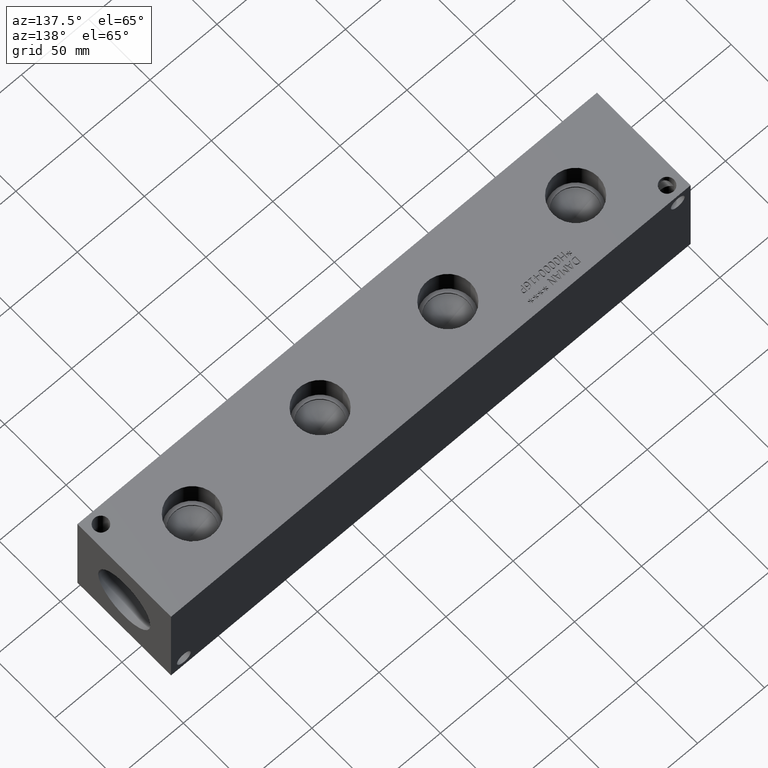
[diagram: clean part render]
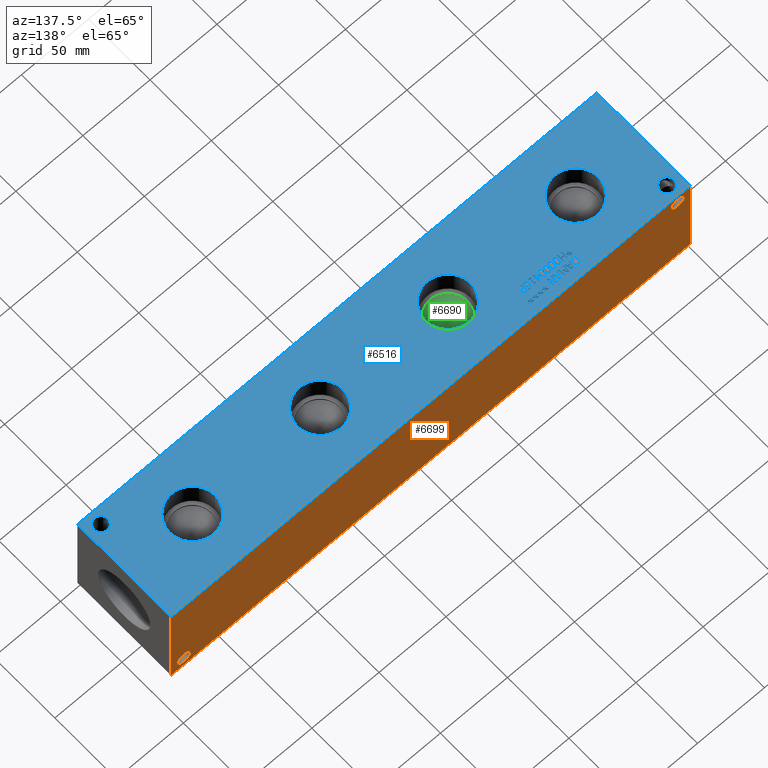
[diagram: same view with three faces highlighted in distinct colors, each labeled with its STEP entity id]
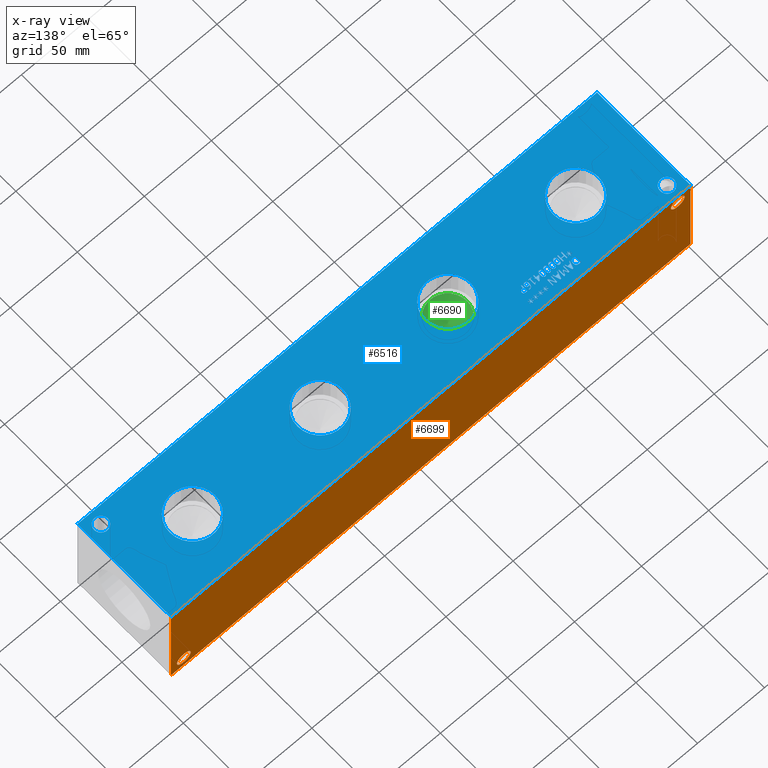
[diagram: x-ray of the same camera — body ghosted, the three highlighted faces saturated]
A machine part, auxiliary view with three faces highlighted in distinct colors.
The next image is the same camera in x-ray (body ghosted, the three faces saturated) — at least one of them is partly hidden behind the body in this view.
Their STEP definitions:

[orange] entity #6699 — the highlighted planar face has unit normal (0, 1, 0).
#62=CIRCLE('',#6954,5.1562);
#65=CIRCLE('',#6964,5.1562);
#144=FACE_BOUND('',#1093,.T.);
#145=FACE_BOUND('',#1094,.T.);
#374=PLANE('',#7029);
#712=FACE_OUTER_BOUND('',#1092,.T.);
#1092=EDGE_LOOP('',(#5962,#5963,#5964,#5965));
#1093=EDGE_LOOP('',(#5966));
#1094=EDGE_LOOP('',(#5967));
#1374=LINE('',#10197,#2057);
#1781=LINE('',#11296,#2464);
#1782=LINE('',#11299,#2465);
#1783=LINE('',#11300,#2466);
#2057=VECTOR('',#7456,10.);
#2464=VECTOR('',#8335,10.);
#2465=VECTOR('',#8338,10.);
#2466=VECTOR('',#8339,10.);
#2920=VERTEX_POINT('',#10194);
#2921=VERTEX_POINT('',#10196);
#3200=VERTEX_POINT('',#11144);
#3205=VERTEX_POINT('',#11162);
#3248=VERTEX_POINT('',#11292);
#3250=VERTEX_POINT('',#11298);
#3674=EDGE_CURVE('',#2920,#2921,#1374,.T.);
#4089=EDGE_CURVE('',#3200,#3200,#62,.T.);
#4099=EDGE_CURVE('',#3205,#3205,#65,.T.);
#4159=EDGE_CURVE('',#3248,#2921,#1781,.T.);
#4160=EDGE_CURVE('',#3250,#3248,#1782,.T.);
#4161=EDGE_CURVE('',#3250,#2920,#1783,.T.);
#5962=ORIENTED_EDGE('',*,*,#4160,.T.);
#5963=ORIENTED_EDGE('',*,*,#4159,.T.);
#5964=ORIENTED_EDGE('',*,*,#3674,.F.);
#5965=ORIENTED_EDGE('',*,*,#4161,.F.);
#5966=ORIENTED_EDGE('',*,*,#4089,.T.);
#5967=ORIENTED_EDGE('',*,*,#4099,.T.);
#6699=ADVANCED_FACE('',(#712,#144,#145),#374,.T.);
#6954=AXIS2_PLACEMENT_3D('',#11146,#8159,#8160);
#6964=AXIS2_PLACEMENT_3D('',#11164,#8182,#8183);
#7029=AXIS2_PLACEMENT_3D('',#11297,#8336,#8337);
#7456=DIRECTION('',(-1.,0.,0.));
#8159=DIRECTION('center_axis',(0.,-1.,0.));
#8160=DIRECTION('ref_axis',(1.,0.,0.));
#8182=DIRECTION('center_axis',(0.,-1.,0.));
#8183=DIRECTION('ref_axis',(1.,0.,0.));
#8335=DIRECTION('',(0.,0.,1.));
#8336=DIRECTION('center_axis',(0.,1.,0.));
#8337=DIRECTION('ref_axis',(-1.,0.,0.));
#8338=DIRECTION('',(-1.,0.,0.));
#8339=DIRECTION('',(0.,0.,1.));
#10194=CARTESIAN_POINT('',(387.35,76.2,76.2));
#10196=CARTESIAN_POINT('',(0.,76.2,76.2));
#10197=CARTESIAN_POINT('',(387.35,76.2,76.2));
#11144=CARTESIAN_POINT('',(372.6688,76.2,8.73125));
#11146=CARTESIAN_POINT('Origin',(377.825,76.2,8.73125));
#11162=CARTESIAN_POINT('',(4.3688,76.2,67.45605));
#11164=CARTESIAN_POINT('Origin',(9.525,76.2,67.45605));
#11292=CARTESIAN_POINT('',(0.,76.2,0.));
#11296=CARTESIAN_POINT('',(0.,76.2,0.));
#11297=CARTESIAN_POINT('Origin',(387.35,76.2,0.));
#11298=CARTESIAN_POINT('',(387.35,76.2,0.));
#11299=CARTESIAN_POINT('',(387.35,76.2,0.));
#11300=CARTESIAN_POINT('',(387.35,76.2,0.));

[blue] entity #6516 — the highlighted planar face has unit normal (0, 0, 1).
#48=CIRCLE('',#6793,5.1562);
#49=CIRCLE('',#6794,5.1562);
#50=CIRCLE('',#6795,5.1562);
#51=CIRCLE('',#6796,5.1562);
#52=CIRCLE('',#6797,16.8529);
#53=CIRCLE('',#6798,16.8529);
#54=CIRCLE('',#6799,16.8529);
#55=CIRCLE('',#6800,16.8529);
#56=CIRCLE('',#6801,16.8529);
#57=CIRCLE('',#6802,16.8529);
#58=CIRCLE('',#6803,16.8529);
#59=CIRCLE('',#6804,16.8529);
#109=FACE_BOUND('',#875,.T.);
#110=FACE_BOUND('',#876,.T.);
#111=FACE_BOUND('',#877,.T.);
#112=FACE_BOUND('',#878,.T.);
#113=FACE_BOUND('',#879,.T.);
#114=FACE_BOUND('',#880,.T.);
#115=FACE_BOUND('',#881,.T.);
#116=FACE_BOUND('',#882,.T.);
#117=FACE_BOUND('',#883,.T.);
#118=FACE_BOUND('',#884,.T.);
#119=FACE_BOUND('',#885,.T.);
#120=FACE_BOUND('',#886,.T.);
#121=FACE_BOUND('',#887,.T.);
#122=FACE_BOUND('',#888,.T.);
#123=FACE_BOUND('',#889,.T.);
#124=FACE_BOUND('',#890,.T.);
#125=FACE_BOUND('',#891,.T.);
#126=FACE_BOUND('',#892,.T.);
#127=FACE_BOUND('',#893,.T.);
#128=FACE_BOUND('',#894,.T.);
#129=FACE_BOUND('',#895,.T.);
#130=FACE_BOUND('',#896,.T.);
#131=FACE_BOUND('',#897,.T.);
#132=FACE_BOUND('',#898,.T.);
#133=FACE_BOUND('',#899,.T.);
#225=PLANE('',#6792);
#529=FACE_OUTER_BOUND('',#874,.T.);
#874=EDGE_LOOP('',(#4865,#4866,#4867,#4868));
#875=EDGE_LOOP('',(#4869,#4870,#4871,#4872,#4873,#4874,#4875,#4876,#4877,
#4878,#4879,#4880,#4881,#4882,#4883,#4884,#4885,#4886));
#876=EDGE_LOOP('',(#4887,#4888,#4889,#4890,#4891,#4892,#4893,#4894,#4895,
#4896,#4897,#4898,#4899,#4900,#4901,#4902,#4903,#4904));
#877=EDGE_LOOP('',(#4905,#4906,#4907,#4908,#4909,#4910,#4911,#4912,#4913,
#4914,#4915,#4916,#4917));
#878=EDGE_LOOP('',(#4918,#4919,#4920,#4921,#4922,#4923,#4924,#4925));
#879=EDGE_LOOP('',(#4926,#4927,#4928,#4929,#4930,#4931,#4932));
#880=EDGE_LOOP('',(#4933,#4934,#4935,#4936,#4937,#4938,#4939,#4940));
#881=EDGE_LOOP('',(#4941,#4942,#4943,#4944,#4945,#4946,#4947,#4948,#4949,
#4950));
#882=EDGE_LOOP('',(#4951,#4952,#4953,#4954,#4955,#4956,#4957,#4958,#4959,
#4960,#4961,#4962,#4963,#4964,#4965,#4966,#4967,#4968));
#883=EDGE_LOOP('',(#4969,#4970,#4971,#4972,#4973,#4974,#4975,#4976,#4977,
#4978,#4979,#4980,#4981,#4982,#4983,#4984,#4985,#4986));
#884=EDGE_LOOP('',(#4987,#4988));
#885=EDGE_LOOP('',(#4989,#4990));
#886=EDGE_LOOP('',(#4991,#4992));
#887=EDGE_LOOP('',(#4993,#4994));
#888=EDGE_LOOP('',(#4995,#4996));
#889=EDGE_LOOP('',(#4997,#4998));
#890=EDGE_LOOP('',(#4999,#5000,#5001,#5002,#5003,#5004,#5005,#5006,#5007,
#5008,#5009));
#891=EDGE_LOOP('',(#5010,#5011,#5012,#5013,#5014,#5015,#5016,#5017,#5018,
#5019,#5020));
#892=EDGE_LOOP('',(#5021,#5022,#5023,#5024));
#893=EDGE_LOOP('',(#5025,#5026,#5027,#5028));
#894=EDGE_LOOP('',(#5029,#5030,#5031,#5032));
#895=EDGE_LOOP('',(#5033,#5034,#5035,#5036));
#896=EDGE_LOOP('',(#5037,#5038,#5039,#5040,#5041,#5042,#5043,#5044,#5045,
#5046,#5047,#5048,#5049,#5050,#5051,#5052,#5053,#5054));
#897=EDGE_LOOP('',(#5055,#5056,#5057,#5058,#5059,#5060,#5061,#5062,#5063,
#5064,#5065,#5066));
#898=EDGE_LOOP('',(#5067,#5068,#5069,#5070,#5071,#5072,#5073,#5074,#5075,
#5076,#5077,#5078,#5079,#5080));
#899=EDGE_LOOP('',(#5081,#5082,#5083,#5084,#5085,#5086,#5087,#5088,#5089));
#1120=LINE('',#8489,#1803);
#1123=LINE('',#8495,#1806);
#1126=LINE('',#8501,#1809);
#1129=LINE('',#8507,#1812);
#1132=LINE('',#8513,#1815);
#1149=LINE('',#8786,#1832);
#1152=LINE('',#8792,#1835);
#1161=LINE('',#8930,#1844);
#1165=LINE('',#8938,#1848);
#1168=LINE('',#8944,#1851);
#1171=LINE('',#8950,#1854);
#1174=LINE('',#8956,#1857);
#1177=LINE('',#8962,#1860);
#1180=LINE('',#8968,#1863);
#1183=LINE('',#8974,#1866);
#1186=LINE('',#8980,#1869);
#1189=LINE('',#8986,#1872);
#1192=LINE('',#8992,#1875);
#1195=LINE('',#8997,#1878);
#1197=LINE('',#9003,#1880);
#1201=LINE('',#9011,#1884);
#1204=LINE('',#9017,#1887);
#1207=LINE('',#9023,#1890);
#1210=LINE('',#9029,#1893);
#1213=LINE('',#9035,#1896);
#1216=LINE('',#9041,#1899);
#1219=LINE('',#9047,#1902);
#1222=LINE('',#9053,#1905);
#1225=LINE('',#9059,#1908);
#1228=LINE('',#9065,#1911);
#1231=LINE('',#9071,#1914);
#1234=LINE('',#9077,#1917);
#1237=LINE('',#9083,#1920);
#1240=LINE('',#9089,#1923);
#1243=LINE('',#9095,#1926);
#1246=LINE('',#9101,#1929);
#1249=LINE('',#9106,#1932);
#1308=LINE('',#10046,#1991);
#1312=LINE('',#10054,#1995);
#1315=LINE('',#10060,#1998);
#1318=LINE('',#10066,#2001);
#1321=LINE('',#10072,#2004);
#1324=LINE('',#10078,#2007);
#1327=LINE('',#10084,#2010);
#1330=LINE('',#10090,#2013);
#1333=LINE('',#10096,#2016);
#1336=LINE('',#10102,#2019);
#1339=LINE('',#10107,#2022);
#1341=LINE('',#10113,#2024);
#1345=LINE('',#10121,#2028);
#1348=LINE('',#10127,#2031);
#1351=LINE('',#10133,#2034);
#1355=LINE('',#10158,#2038);
#1358=LINE('',#10164,#2041);
#1361=LINE('',#10170,#2044);
#1364=LINE('',#10176,#2047);
#1367=LINE('',#10182,#2050);
#1370=LINE('',#10187,#2053);
#1372=LINE('',#10193,#2055);
#1373=LINE('',#10195,#2056);
#1374=LINE('',#10197,#2057);
#1375=LINE('',#10198,#2058);
#1376=LINE('',#10201,#2059);
#1377=LINE('',#10203,#2060);
#1378=LINE('',#10205,#2061);
#1379=LINE('',#10207,#2062);
#1380=LINE('',#10209,#2063);
#1381=LINE('',#10211,#2064);
#1382=LINE('',#10213,#2065);
#1383=LINE('',#10215,#2066);
#1384=LINE('',#10217,#2067);
#1385=LINE('',#10219,#2068);
#1386=LINE('',#10221,#2069);
#1387=LINE('',#10223,#2070);
#1388=LINE('',#10225,#2071);
#1389=LINE('',#10227,#2072);
#1390=LINE('',#10229,#2073);
#1391=LINE('',#10231,#2074);
#1392=LINE('',#10233,#2075);
#1393=LINE('',#10234,#2076);
#1394=LINE('',#10237,#2077);
#1395=LINE('',#10239,#2078);
#1396=LINE('',#10241,#2079);
#1397=LINE('',#10243,#2080);
#1398=LINE('',#10245,#2081);
#1399=LINE('',#10247,#2082);
#1400=LINE('',#10249,#2083);
#1401=LINE('',#10251,#2084);
#1402=LINE('',#10253,#2085);
#1403=LINE('',#10255,#2086);
#1404=LINE('',#10257,#2087);
#1405=LINE('',#10259,#2088);
#1406=LINE('',#10261,#2089);
#1407=LINE('',#10263,#2090);
#1408=LINE('',#10265,#2091);
#1409=LINE('',#10267,#2092);
#1410=LINE('',#10269,#2093);
#1411=LINE('',#10270,#2094);
#1412=LINE('',#10273,#2095);
#1413=LINE('',#10275,#2096);
#1414=LINE('',#10277,#2097);
#1415=LINE('',#10279,#2098);
#1416=LINE('',#10281,#2099);
#1417=LINE('',#10283,#2100);
#1418=LINE('',#10285,#2101);
#1419=LINE('',#10287,#2102);
#1420=LINE('',#10289,#2103);
#1421=LINE('',#10291,#2104);
#1422=LINE('',#10293,#2105);
#1423=LINE('',#10295,#2106);
#1424=LINE('',#10296,#2107);
#1425=LINE('',#10299,#2108);
#1426=LINE('',#10301,#2109);
#1427=LINE('',#10303,#2110);
#1428=LINE('',#10305,#2111);
#1429=LINE('',#10307,#2112);
#1430=LINE('',#10309,#2113);
#1431=LINE('',#10311,#2114);
#1432=LINE('',#10312,#2115);
#1433=LINE('',#10330,#2116);
#1434=LINE('',#10332,#2117);
#1435=LINE('',#10334,#2118);
#1436=LINE('',#10341,#2119);
#1437=LINE('',#10343,#2120);
#1438=LINE('',#10345,#2121);
#1439=LINE('',#10347,#2122);
#1440=LINE('',#10349,#2123);
#1441=LINE('',#10351,#2124);
#1442=LINE('',#10353,#2125);
#1443=LINE('',#10354,#2126);
#1444=LINE('',#10357,#2127);
#1445=LINE('',#10359,#2128);
#1446=LINE('',#10361,#2129);
#1447=LINE('',#10363,#2130);
#1448=LINE('',#10365,#2131);
#1449=LINE('',#10367,#2132);
#1450=LINE('',#10369,#2133);
#1451=LINE('',#10371,#2134);
#1452=LINE('',#10373,#2135);
#1453=LINE('',#10374,#2136);
#1454=LINE('',#10377,#2137);
#1455=LINE('',#10379,#2138);
#1456=LINE('',#10381,#2139);
#1457=LINE('',#10383,#2140);
#1458=LINE('',#10385,#2141);
#1459=LINE('',#10387,#2142);
#1460=LINE('',#10389,#2143);
#1461=LINE('',#10391,#2144);
#1462=LINE('',#10393,#2145);
#1463=LINE('',#10395,#2146);
#1464=LINE('',#10397,#2147);
#1465=LINE('',#10399,#2148);
#1466=LINE('',#10401,#2149);
#1467=LINE('',#10403,#2150);
#1468=LINE('',#10405,#2151);
#1469=LINE('',#10407,#2152);
#1470=LINE('',#10409,#2153);
#1471=LINE('',#10410,#2154);
#1472=LINE('',#10413,#2155);
#1473=LINE('',#10415,#2156);
#1474=LINE('',#10417,#2157);
#1475=LINE('',#10419,#2158);
#1476=LINE('',#10421,#2159);
#1477=LINE('',#10423,#2160);
#1478=LINE('',#10425,#2161);
#1479=LINE('',#10427,#2162);
#1480=LINE('',#10429,#2163);
#1481=LINE('',#10431,#2164);
#1482=LINE('',#10433,#2165);
#1483=LINE('',#10435,#2166);
#1484=LINE('',#10437,#2167);
#1485=LINE('',#10439,#2168);
#1486=LINE('',#10441,#2169);
#1487=LINE('',#10443,#2170);
#1488=LINE('',#10445,#2171);
#1489=LINE('',#10446,#2172);
#1803=VECTOR('',#7060,10.);
#1806=VECTOR('',#7065,10.);
#1809=VECTOR('',#7070,10.);
#1812=VECTOR('',#7075,10.);
#1815=VECTOR('',#7080,10.);
#1832=VECTOR('',#7101,10.);
#1835=VECTOR('',#7106,10.);
#1844=VECTOR('',#7119,10.);
#1848=VECTOR('',#7125,10.);
#1851=VECTOR('',#7130,10.);
#1854=VECTOR('',#7135,10.);
#1857=VECTOR('',#7140,10.);
#1860=VECTOR('',#7145,10.);
#1863=VECTOR('',#7150,10.);
#1866=VECTOR('',#7155,10.);
#1869=VECTOR('',#7160,10.);
#1872=VECTOR('',#7165,10.);
#1875=VECTOR('',#7170,10.);
#1878=VECTOR('',#7175,10.);
#1880=VECTOR('',#7181,10.);
#1884=VECTOR('',#7187,10.);
#1887=VECTOR('',#7192,10.);
#1890=VECTOR('',#7197,10.);
#1893=VECTOR('',#7202,10.);
#1896=VECTOR('',#7207,10.);
#1899=VECTOR('',#7212,10.);
#1902=VECTOR('',#7217,10.);
#1905=VECTOR('',#7222,10.);
#1908=VECTOR('',#7227,10.);
#1911=VECTOR('',#7232,10.);
#1914=VECTOR('',#7237,10.);
#1917=VECTOR('',#7242,10.);
#1920=VECTOR('',#7247,10.);
#1923=VECTOR('',#7252,10.);
#1926=VECTOR('',#7257,10.);
#1929=VECTOR('',#7262,10.);
#1932=VECTOR('',#7267,10.);
#1991=VECTOR('',#7344,10.);
#1995=VECTOR('',#7350,10.);
#1998=VECTOR('',#7355,10.);
#2001=VECTOR('',#7360,10.);
#2004=VECTOR('',#7365,10.);
#2007=VECTOR('',#7370,10.);
#2010=VECTOR('',#7375,10.);
#2013=VECTOR('',#7380,10.);
#2016=VECTOR('',#7385,10.);
#2019=VECTOR('',#7390,10.);
#2022=VECTOR('',#7395,10.);
#2024=VECTOR('',#7401,10.);
#2028=VECTOR('',#7407,10.);
#2031=VECTOR('',#7412,10.);
#2034=VECTOR('',#7417,10.);
#2038=VECTOR('',#7423,10.);
#2041=VECTOR('',#7428,10.);
#2044=VECTOR('',#7433,10.);
#2047=VECTOR('',#7438,10.);
#2050=VECTOR('',#7443,10.);
#2053=VECTOR('',#7448,10.);
#2055=VECTOR('',#7454,10.);
#2056=VECTOR('',#7455,10.);
#2057=VECTOR('',#7456,10.);
#2058=VECTOR('',#7457,10.);
#2059=VECTOR('',#7458,10.);
#2060=VECTOR('',#7459,10.);
#2061=VECTOR('',#7460,10.);
#2062=VECTOR('',#7461,10.);
#2063=VECTOR('',#7462,10.);
#2064=VECTOR('',#7463,10.);
#2065=VECTOR('',#7464,10.);
#2066=VECTOR('',#7465,10.);
#2067=VECTOR('',#7466,10.);
#2068=VECTOR('',#7467,10.);
#2069=VECTOR('',#7468,10.);
#2070=VECTOR('',#7469,10.);
#2071=VECTOR('',#7470,10.);
#2072=VECTOR('',#7471,10.);
#2073=VECTOR('',#7472,10.);
#2074=VECTOR('',#7473,10.);
#2075=VECTOR('',#7474,10.);
#2076=VECTOR('',#7475,10.);
#2077=VECTOR('',#7476,10.);
#2078=VECTOR('',#7477,10.);
#2079=VECTOR('',#7478,10.);
#2080=VECTOR('',#7479,10.);
#2081=VECTOR('',#7480,10.);
#2082=VECTOR('',#7481,10.);
#2083=VECTOR('',#7482,10.);
#2084=VECTOR('',#7483,10.);
#2085=VECTOR('',#7484,10.);
#2086=VECTOR('',#7485,10.);
#2087=VECTOR('',#7486,10.);
#2088=VECTOR('',#7487,10.);
#2089=VECTOR('',#7488,10.);
#2090=VECTOR('',#7489,10.);
#2091=VECTOR('',#7490,10.);
#2092=VECTOR('',#7491,10.);
#2093=VECTOR('',#7492,10.);
#2094=VECTOR('',#7493,10.);
#2095=VECTOR('',#7494,10.);
#2096=VECTOR('',#7495,10.);
#2097=VECTOR('',#7496,10.);
#2098=VECTOR('',#7497,10.);
#2099=VECTOR('',#7498,10.);
#2100=VECTOR('',#7499,10.);
#2101=VECTOR('',#7500,10.);
#2102=VECTOR('',#7501,10.);
#2103=VECTOR('',#7502,10.);
#2104=VECTOR('',#7503,10.);
#2105=VECTOR('',#7504,10.);
#2106=VECTOR('',#7505,10.);
#2107=VECTOR('',#7506,10.);
#2108=VECTOR('',#7507,10.);
#2109=VECTOR('',#7508,10.);
#2110=VECTOR('',#7509,10.);
#2111=VECTOR('',#7510,10.);
#2112=VECTOR('',#7511,10.);
#2113=VECTOR('',#7512,10.);
#2114=VECTOR('',#7513,10.);
#2115=VECTOR('',#7514,10.);
#2116=VECTOR('',#7515,10.);
#2117=VECTOR('',#7516,10.);
#2118=VECTOR('',#7517,10.);
#2119=VECTOR('',#7518,10.);
#2120=VECTOR('',#7519,10.);
#2121=VECTOR('',#7520,10.);
#2122=VECTOR('',#7521,10.);
#2123=VECTOR('',#7522,10.);
#2124=VECTOR('',#7523,10.);
#2125=VECTOR('',#7524,10.);
#2126=VECTOR('',#7525,10.);
#2127=VECTOR('',#7526,10.);
#2128=VECTOR('',#7527,10.);
#2129=VECTOR('',#7528,10.);
#2130=VECTOR('',#7529,10.);
#2131=VECTOR('',#7530,10.);
#2132=VECTOR('',#7531,10.);
#2133=VECTOR('',#7532,10.);
#2134=VECTOR('',#7533,10.);
#2135=VECTOR('',#7534,10.);
#2136=VECTOR('',#7535,10.);
#2137=VECTOR('',#7536,10.);
#2138=VECTOR('',#7537,10.);
#2139=VECTOR('',#7538,10.);
#2140=VECTOR('',#7539,10.);
#2141=VECTOR('',#7540,10.);
#2142=VECTOR('',#7541,10.);
#2143=VECTOR('',#7542,10.);
#2144=VECTOR('',#7543,10.);
#2145=VECTOR('',#7544,10.);
#2146=VECTOR('',#7545,10.);
#2147=VECTOR('',#7546,10.);
#2148=VECTOR('',#7547,10.);
#2149=VECTOR('',#7548,10.);
#2150=VECTOR('',#7549,10.);
#2151=VECTOR('',#7550,10.);
#2152=VECTOR('',#7551,10.);
#2153=VECTOR('',#7552,10.);
#2154=VECTOR('',#7553,10.);
#2155=VECTOR('',#7554,10.);
#2156=VECTOR('',#7555,10.);
#2157=VECTOR('',#7556,10.);
#2158=VECTOR('',#7557,10.);
#2159=VECTOR('',#7558,10.);
#2160=VECTOR('',#7559,10.);
#2161=VECTOR('',#7560,10.);
#2162=VECTOR('',#7561,10.);
#2163=VECTOR('',#7562,10.);
#2164=VECTOR('',#7563,10.);
#2165=VECTOR('',#7564,10.);
#2166=VECTOR('',#7565,10.);
#2167=VECTOR('',#7566,10.);
#2168=VECTOR('',#7567,10.);
#2169=VECTOR('',#7568,10.);
#2170=VECTOR('',#7569,10.);
#2171=VECTOR('',#7570,10.);
#2172=VECTOR('',#7571,10.);
#2478=B_SPLINE_CURVE_WITH_KNOTS('',2,(#8456,#8457,#8458,#8459),
 .UNSPECIFIED.,.F.,.F.,(3,1,3),(0.,1.,2.),.UNSPECIFIED.);
#2480=B_SPLINE_CURVE_WITH_KNOTS('',2,(#8477,#8478,#8479,#8480),
 .UNSPECIFIED.,.F.,.F.,(3,1,3),(0.,1.,2.),.UNSPECIFIED.);
#2482=B_SPLINE_CURVE_WITH_KNOTS('',2,(#8526,#8527,#8528,#8529),
 .UNSPECIFIED.,.F.,.F.,(3,1,3),(0.,1.,2.),.UNSPECIFIED.);
#2484=B_SPLINE_CURVE_WITH_KNOTS('',2,(#8544,#8545,#8546,#8547),
 .UNSPECIFIED.,.F.,.F.,(3,1,3),(0.,1.,2.),.UNSPECIFIED.);
#2500=B_SPLINE_CURVE_WITH_KNOTS('',2,(#8696,#8697,#8698,#8699),
 .UNSPECIFIED.,.F.,.F.,(3,1,3),(0.,1.,2.),.UNSPECIFIED.);
#2502=B_SPLINE_CURVE_WITH_KNOTS('',2,(#8717,#8718,#8719,#8720),
 .UNSPECIFIED.,.F.,.F.,(3,1,3),(0.,1.,2.),.UNSPECIFIED.);
#2504=B_SPLINE_CURVE_WITH_KNOTS('',2,(#8736,#8737,#8738,#8739),
 .UNSPECIFIED.,.F.,.F.,(3,1,3),(0.,1.,2.),.UNSPECIFIED.);
#2506=B_SPLINE_CURVE_WITH_KNOTS('',2,(#8755,#8756,#8757,#8758),
 .UNSPECIFIED.,.F.,.F.,(3,1,3),(0.,1.,2.),.UNSPECIFIED.);
#2508=B_SPLINE_CURVE_WITH_KNOTS('',2,(#8774,#8775,#8776,#8777),
 .UNSPECIFIED.,.F.,.F.,(3,1,3),(0.,1.,2.),.UNSPECIFIED.);
#2510=B_SPLINE_CURVE_WITH_KNOTS('',2,(#8805,#8806,#8807,#8808),
 .UNSPECIFIED.,.F.,.F.,(3,1,3),(0.,1.,2.),.UNSPECIFIED.);
#2512=B_SPLINE_CURVE_WITH_KNOTS('',2,(#8824,#8825,#8826,#8827),
 .UNSPECIFIED.,.F.,.F.,(3,1,3),(0.,1.,2.),.UNSPECIFIED.);
#2514=B_SPLINE_CURVE_WITH_KNOTS('',2,(#8843,#8844,#8845,#8846),
 .UNSPECIFIED.,.F.,.F.,(3,1,3),(0.,1.,2.),.UNSPECIFIED.);
#2516=B_SPLINE_CURVE_WITH_KNOTS('',2,(#8862,#8863,#8864,#8865),
 .UNSPECIFIED.,.F.,.F.,(3,1,3),(0.,1.,2.),.UNSPECIFIED.);
#2518=B_SPLINE_CURVE_WITH_KNOTS('',2,(#8881,#8882,#8883,#8884),
 .UNSPECIFIED.,.F.,.F.,(3,1,3),(0.,1.,2.),.UNSPECIFIED.);
#2520=B_SPLINE_CURVE_WITH_KNOTS('',2,(#8900,#8901,#8902,#8903),
 .UNSPECIFIED.,.F.,.F.,(3,1,3),(0.,1.,2.),.UNSPECIFIED.);
#2522=B_SPLINE_CURVE_WITH_KNOTS('',2,(#8918,#8919,#8920,#8921),
 .UNSPECIFIED.,.F.,.F.,(3,1,3),(0.,1.,2.),.UNSPECIFIED.);
#2540=B_SPLINE_CURVE_WITH_KNOTS('',2,(#9271,#9272,#9273,#9274),
 .UNSPECIFIED.,.F.,.F.,(3,1,3),(0.,1.,2.),.UNSPECIFIED.);
#2542=B_SPLINE_CURVE_WITH_KNOTS('',2,(#9292,#9293,#9294,#9295),
 .UNSPECIFIED.,.F.,.F.,(3,1,3),(0.,1.,2.),.UNSPECIFIED.);
#2544=B_SPLINE_CURVE_WITH_KNOTS('',2,(#9311,#9312,#9313,#9314),
 .UNSPECIFIED.,.F.,.F.,(3,1,3),(0.,1.,2.),.UNSPECIFIED.);
#2546=B_SPLINE_CURVE_WITH_KNOTS('',2,(#9329,#9330,#9331,#9332),
 .UNSPECIFIED.,.F.,.F.,(3,1,3),(0.,1.,2.),.UNSPECIFIED.);
#2564=B_SPLINE_CURVE_WITH_KNOTS('',2,(#9500,#9501,#9502,#9503),
 .UNSPECIFIED.,.F.,.F.,(3,1,3),(0.,1.,2.),.UNSPECIFIED.);
#2566=B_SPLINE_CURVE_WITH_KNOTS('',2,(#9521,#9522,#9523,#9524),
 .UNSPECIFIED.,.F.,.F.,(3,1,3),(0.,1.,2.),.UNSPECIFIED.);
#2568=B_SPLINE_CURVE_WITH_KNOTS('',2,(#9540,#9541,#9542,#9543),
 .UNSPECIFIED.,.F.,.F.,(3,1,3),(0.,1.,2.),.UNSPECIFIED.);
#2570=B_SPLINE_CURVE_WITH_KNOTS('',2,(#9558,#9559,#9560,#9561),
 .UNSPECIFIED.,.F.,.F.,(3,1,3),(0.,1.,2.),.UNSPECIFIED.);
#2588=B_SPLINE_CURVE_WITH_KNOTS('',2,(#9729,#9730,#9731,#9732),
 .UNSPECIFIED.,.F.,.F.,(3,1,3),(0.,1.,2.),.UNSPECIFIED.);
#2590=B_SPLINE_CURVE_WITH_KNOTS('',2,(#9750,#9751,#9752,#9753),
 .UNSPECIFIED.,.F.,.F.,(3,1,3),(0.,1.,2.),.UNSPECIFIED.);
#2592=B_SPLINE_CURVE_WITH_KNOTS('',2,(#9769,#9770,#9771,#9772),
 .UNSPECIFIED.,.F.,.F.,(3,1,3),(0.,1.,2.),.UNSPECIFIED.);
#2594=B_SPLINE_CURVE_WITH_KNOTS('',2,(#9787,#9788,#9789,#9790),
 .UNSPECIFIED.,.F.,.F.,(3,1,3),(0.,1.,2.),.UNSPECIFIED.);
#2612=B_SPLINE_CURVE_WITH_KNOTS('',2,(#9958,#9959,#9960,#9961),
 .UNSPECIFIED.,.F.,.F.,(3,1,3),(0.,1.,2.),.UNSPECIFIED.);
#2614=B_SPLINE_CURVE_WITH_KNOTS('',2,(#9979,#9980,#9981,#9982),
 .UNSPECIFIED.,.F.,.F.,(3,1,3),(0.,1.,2.),.UNSPECIFIED.);
#2616=B_SPLINE_CURVE_WITH_KNOTS('',2,(#9998,#9999,#10000,#10001),
 .UNSPECIFIED.,.F.,.F.,(3,1,3),(0.,1.,2.),.UNSPECIFIED.);
#2618=B_SPLINE_CURVE_WITH_KNOTS('',2,(#10016,#10017,#10018,#10019),
 .UNSPECIFIED.,.F.,.F.,(3,1,3),(0.,1.,2.),.UNSPECIFIED.);
#2620=B_SPLINE_CURVE_WITH_KNOTS('',2,(#10146,#10147,#10148,#10149),
 .UNSPECIFIED.,.F.,.F.,(3,1,3),(0.,1.,2.),.UNSPECIFIED.);
#2622=B_SPLINE_CURVE_WITH_KNOTS('',2,(#10315,#10316,#10317,#10318),
 .UNSPECIFIED.,.F.,.F.,(3,1,3),(0.,1.,2.),.UNSPECIFIED.);
#2623=B_SPLINE_CURVE_WITH_KNOTS('',2,(#10320,#10321,#10322,#10323),
 .UNSPECIFIED.,.F.,.F.,(3,1,3),(0.,1.,2.),.UNSPECIFIED.);
#2624=B_SPLINE_CURVE_WITH_KNOTS('',2,(#10325,#10326,#10327,#10328),
 .UNSPECIFIED.,.F.,.F.,(3,1,3),(0.,1.,2.),.UNSPECIFIED.);
#2625=B_SPLINE_CURVE_WITH_KNOTS('',2,(#10335,#10336,#10337,#10338),
 .UNSPECIFIED.,.F.,.F.,(3,1,3),(0.,1.,2.),.UNSPECIFIED.);
#2652=VERTEX_POINT('',#8454);
#2653=VERTEX_POINT('',#8455);
#2656=VERTEX_POINT('',#8476);
#2658=VERTEX_POINT('',#8488);
#2660=VERTEX_POINT('',#8494);
#2662=VERTEX_POINT('',#8500);
#2664=VERTEX_POINT('',#8506);
#2666=VERTEX_POINT('',#8512);
#2668=VERTEX_POINT('',#8525);
#2684=VERTEX_POINT('',#8694);
#2685=VERTEX_POINT('',#8695);
#2688=VERTEX_POINT('',#8716);
#2690=VERTEX_POINT('',#8735);
#2692=VERTEX_POINT('',#8754);
#2694=VERTEX_POINT('',#8773);
#2696=VERTEX_POINT('',#8785);
#2698=VERTEX_POINT('',#8791);
#2700=VERTEX_POINT('',#8804);
#2702=VERTEX_POINT('',#8823);
#2704=VERTEX_POINT('',#8842);
#2706=VERTEX_POINT('',#8861);
#2708=VERTEX_POINT('',#8880);
#2710=VERTEX_POINT('',#8899);
#2712=VERTEX_POINT('',#8928);
#2713=VERTEX_POINT('',#8929);
#2716=VERTEX_POINT('',#8937);
#2718=VERTEX_POINT('',#8943);
#2720=VERTEX_POINT('',#8949);
#2722=VERTEX_POINT('',#8955);
#2724=VERTEX_POINT('',#8961);
#2726=VERTEX_POINT('',#8967);
#2728=VERTEX_POINT('',#8973);
#2730=VERTEX_POINT('',#8979);
#2732=VERTEX_POINT('',#8985);
#2734=VERTEX_POINT('',#8991);
#2736=VERTEX_POINT('',#9001);
#2737=VERTEX_POINT('',#9002);
#2740=VERTEX_POINT('',#9010);
#2742=VERTEX_POINT('',#9016);
#2744=VERTEX_POINT('',#9022);
#2746=VERTEX_POINT('',#9028);
#2748=VERTEX_POINT('',#9034);
#2750=VERTEX_POINT('',#9040);
#2752=VERTEX_POINT('',#9046);
#2754=VERTEX_POINT('',#9052);
#2756=VERTEX_POINT('',#9058);
#2758=VERTEX_POINT('',#9064);
#2760=VERTEX_POINT('',#9070);
#2762=VERTEX_POINT('',#9076);
#2764=VERTEX_POINT('',#9082);
#2766=VERTEX_POINT('',#9088);
#2768=VERTEX_POINT('',#9094);
#2770=VERTEX_POINT('',#9100);
#2788=VERTEX_POINT('',#9269);
#2789=VERTEX_POINT('',#9270);
#2792=VERTEX_POINT('',#9291);
#2794=VERTEX_POINT('',#9310);
#2812=VERTEX_POINT('',#9498);
#2813=VERTEX_POINT('',#9499);
#2816=VERTEX_POINT('',#9520);
#2818=VERTEX_POINT('',#9539);
#2836=VERTEX_POINT('',#9727);
#2837=VERTEX_POINT('',#9728);
#2840=VERTEX_POINT('',#9749);
#2842=VERTEX_POINT('',#9768);
#2860=VERTEX_POINT('',#9956);
#2861=VERTEX_POINT('',#9957);
#2864=VERTEX_POINT('',#9978);
#2866=VERTEX_POINT('',#9997);
#2874=VERTEX_POINT('',#10044);
#2875=VERTEX_POINT('',#10045);
#2878=VERTEX_POINT('',#10053);
#2880=VERTEX_POINT('',#10059);
#2882=VERTEX_POINT('',#10065);
#2884=VERTEX_POINT('',#10071);
#2886=VERTEX_POINT('',#10077);
#2888=VERTEX_POINT('',#10083);
#2890=VERTEX_POINT('',#10089);
#2892=VERTEX_POINT('',#10095);
#2894=VERTEX_POINT('',#10101);
#2896=VERTEX_POINT('',#10111);
#2897=VERTEX_POINT('',#10112);
#2900=VERTEX_POINT('',#10120);
#2902=VERTEX_POINT('',#10126);
#2904=VERTEX_POINT('',#10132);
#2906=VERTEX_POINT('',#10145);
#2908=VERTEX_POINT('',#10157);
#2910=VERTEX_POINT('',#10163);
#2912=VERTEX_POINT('',#10169);
#2914=VERTEX_POINT('',#10175);
#2916=VERTEX_POINT('',#10181);
#2918=VERTEX_POINT('',#10191);
#2919=VERTEX_POINT('',#10192);
#2920=VERTEX_POINT('',#10194);
#2921=VERTEX_POINT('',#10196);
#2922=VERTEX_POINT('',#10199);
#2923=VERTEX_POINT('',#10200);
#2924=VERTEX_POINT('',#10202);
#2925=VERTEX_POINT('',#10204);
#2926=VERTEX_POINT('',#10206);
#2927=VERTEX_POINT('',#10208);
#2928=VERTEX_POINT('',#10210);
#2929=VERTEX_POINT('',#10212);
#2930=VERTEX_POINT('',#10214);
#2931=VERTEX_POINT('',#10216);
#2932=VERTEX_POINT('',#10218);
#2933=VERTEX_POINT('',#10220);
#2934=VERTEX_POINT('',#10222);
#2935=VERTEX_POINT('',#10224);
#2936=VERTEX_POINT('',#10226);
#2937=VERTEX_POINT('',#10228);
#2938=VERTEX_POINT('',#10230);
#2939=VERTEX_POINT('',#10232);
#2940=VERTEX_POINT('',#10235);
#2941=VERTEX_POINT('',#10236);
#2942=VERTEX_POINT('',#10238);
#2943=VERTEX_POINT('',#10240);
#2944=VERTEX_POINT('',#10242);
#2945=VERTEX_POINT('',#10244);
#2946=VERTEX_POINT('',#10246);
#2947=VERTEX_POINT('',#10248);
#2948=VERTEX_POINT('',#10250);
#2949=VERTEX_POINT('',#10252);
#2950=VERTEX_POINT('',#10254);
#2951=VERTEX_POINT('',#10256);
#2952=VERTEX_POINT('',#10258);
#2953=VERTEX_POINT('',#10260);
#2954=VERTEX_POINT('',#10262);
#2955=VERTEX_POINT('',#10264);
#2956=VERTEX_POINT('',#10266);
#2957=VERTEX_POINT('',#10268);
#2958=VERTEX_POINT('',#10271);
#2959=VERTEX_POINT('',#10272);
#2960=VERTEX_POINT('',#10274);
#2961=VERTEX_POINT('',#10276);
#2962=VERTEX_POINT('',#10278);
#2963=VERTEX_POINT('',#10280);
#2964=VERTEX_POINT('',#10282);
#2965=VERTEX_POINT('',#10284);
#2966=VERTEX_POINT('',#10286);
#2967=VERTEX_POINT('',#10288);
#2968=VERTEX_POINT('',#10290);
#2969=VERTEX_POINT('',#10292);
#2970=VERTEX_POINT('',#10294);
#2971=VERTEX_POINT('',#10297);
#2972=VERTEX_POINT('',#10298);
#2973=VERTEX_POINT('',#10300);
#2974=VERTEX_POINT('',#10302);
#2975=VERTEX_POINT('',#10304);
#2976=VERTEX_POINT('',#10306);
#2977=VERTEX_POINT('',#10308);
#2978=VERTEX_POINT('',#10310);
#2979=VERTEX_POINT('',#10313);
#2980=VERTEX_POINT('',#10314);
#2981=VERTEX_POINT('',#10319);
#2982=VERTEX_POINT('',#10324);
#2983=VERTEX_POINT('',#10329);
#2984=VERTEX_POINT('',#10331);
#2985=VERTEX_POINT('',#10333);
#2986=VERTEX_POINT('',#10339);
#2987=VERTEX_POINT('',#10340);
#2988=VERTEX_POINT('',#10342);
#2989=VERTEX_POINT('',#10344);
#2990=VERTEX_POINT('',#10346);
#2991=VERTEX_POINT('',#10348);
#2992=VERTEX_POINT('',#10350);
#2993=VERTEX_POINT('',#10352);
#2994=VERTEX_POINT('',#10355);
#2995=VERTEX_POINT('',#10356);
#2996=VERTEX_POINT('',#10358);
#2997=VERTEX_POINT('',#10360);
#2998=VERTEX_POINT('',#10362);
#2999=VERTEX_POINT('',#10364);
#3000=VERTEX_POINT('',#10366);
#3001=VERTEX_POINT('',#10368);
#3002=VERTEX_POINT('',#10370);
#3003=VERTEX_POINT('',#10372);
#3004=VERTEX_POINT('',#10375);
#3005=VERTEX_POINT('',#10376);
#3006=VERTEX_POINT('',#10378);
#3007=VERTEX_POINT('',#10380);
#3008=VERTEX_POINT('',#10382);
#3009=VERTEX_POINT('',#10384);
#3010=VERTEX_POINT('',#10386);
#3011=VERTEX_POINT('',#10388);
#3012=VERTEX_POINT('',#10390);
#3013=VERTEX_POINT('',#10392);
#3014=VERTEX_POINT('',#10394);
#3015=VERTEX_POINT('',#10396);
#3016=VERTEX_POINT('',#10398);
#3017=VERTEX_POINT('',#10400);
#3018=VERTEX_POINT('',#10402);
#3019=VERTEX_POINT('',#10404);
#3020=VERTEX_POINT('',#10406);
#3021=VERTEX_POINT('',#10408);
#3022=VERTEX_POINT('',#10411);
#3023=VERTEX_POINT('',#10412);
#3024=VERTEX_POINT('',#10414);
#3025=VERTEX_POINT('',#10416);
#3026=VERTEX_POINT('',#10418);
#3027=VERTEX_POINT('',#10420);
#3028=VERTEX_POINT('',#10422);
#3029=VERTEX_POINT('',#10424);
#3030=VERTEX_POINT('',#10426);
#3031=VERTEX_POINT('',#10428);
#3032=VERTEX_POINT('',#10430);
#3033=VERTEX_POINT('',#10432);
#3034=VERTEX_POINT('',#10434);
#3035=VERTEX_POINT('',#10436);
#3036=VERTEX_POINT('',#10438);
#3037=VERTEX_POINT('',#10440);
#3038=VERTEX_POINT('',#10442);
#3039=VERTEX_POINT('',#10444);
#3040=VERTEX_POINT('',#10447);
#3041=VERTEX_POINT('',#10448);
#3042=VERTEX_POINT('',#10451);
#3043=VERTEX_POINT('',#10452);
#3044=VERTEX_POINT('',#10455);
#3045=VERTEX_POINT('',#10456);
#3046=VERTEX_POINT('',#10459);
#3047=VERTEX_POINT('',#10460);
#3048=VERTEX_POINT('',#10463);
#3049=VERTEX_POINT('',#10464);
#3050=VERTEX_POINT('',#10467);
#3051=VERTEX_POINT('',#10468);
#3273=EDGE_CURVE('',#2652,#2653,#2478,.T.);
#3277=EDGE_CURVE('',#2656,#2652,#2480,.T.);
#3280=EDGE_CURVE('',#2658,#2656,#1120,.T.);
#3283=EDGE_CURVE('',#2660,#2658,#1123,.T.);
#3286=EDGE_CURVE('',#2662,#2660,#1126,.T.);
#3289=EDGE_CURVE('',#2664,#2662,#1129,.T.);
#3292=EDGE_CURVE('',#2666,#2664,#1132,.T.);
#3295=EDGE_CURVE('',#2668,#2666,#2482,.T.);
#3298=EDGE_CURVE('',#2653,#2668,#2484,.T.);
#3321=EDGE_CURVE('',#2684,#2685,#2500,.T.);
#3325=EDGE_CURVE('',#2688,#2684,#2502,.T.);
#3328=EDGE_CURVE('',#2690,#2688,#2504,.T.);
#3331=EDGE_CURVE('',#2692,#2690,#2506,.T.);
#3334=EDGE_CURVE('',#2694,#2692,#2508,.T.);
#3337=EDGE_CURVE('',#2696,#2694,#1149,.T.);
#3340=EDGE_CURVE('',#2698,#2696,#1152,.T.);
#3343=EDGE_CURVE('',#2700,#2698,#2510,.T.);
#3346=EDGE_CURVE('',#2702,#2700,#2512,.T.);
#3349=EDGE_CURVE('',#2704,#2702,#2514,.T.);
#3352=EDGE_CURVE('',#2706,#2704,#2516,.T.);
#3355=EDGE_CURVE('',#2708,#2706,#2518,.T.);
#3358=EDGE_CURVE('',#2710,#2708,#2520,.T.);
#3361=EDGE_CURVE('',#2685,#2710,#2522,.T.);
#3363=EDGE_CURVE('',#2712,#2713,#1161,.T.);
#3367=EDGE_CURVE('',#2716,#2712,#1165,.T.);
#3370=EDGE_CURVE('',#2718,#2716,#1168,.T.);
#3373=EDGE_CURVE('',#2720,#2718,#1171,.T.);
#3376=EDGE_CURVE('',#2722,#2720,#1174,.T.);
#3379=EDGE_CURVE('',#2724,#2722,#1177,.T.);
#3382=EDGE_CURVE('',#2726,#2724,#1180,.T.);
#3385=EDGE_CURVE('',#2728,#2726,#1183,.T.);
#3388=EDGE_CURVE('',#2730,#2728,#1186,.T.);
#3391=EDGE_CURVE('',#2732,#2730,#1189,.T.);
#3394=EDGE_CURVE('',#2734,#2732,#1192,.T.);
#3397=EDGE_CURVE('',#2713,#2734,#1195,.T.);
#3399=EDGE_CURVE('',#2736,#2737,#1197,.T.);
#3403=EDGE_CURVE('',#2740,#2736,#1201,.T.);
#3406=EDGE_CURVE('',#2742,#2740,#1204,.T.);
#3409=EDGE_CURVE('',#2744,#2742,#1207,.T.);
#3412=EDGE_CURVE('',#2746,#2744,#1210,.T.);
#3415=EDGE_CURVE('',#2748,#2746,#1213,.T.);
#3418=EDGE_CURVE('',#2750,#2748,#1216,.T.);
#3421=EDGE_CURVE('',#2752,#2750,#1219,.T.);
#3424=EDGE_CURVE('',#2754,#2752,#1222,.T.);
#3427=EDGE_CURVE('',#2756,#2754,#1225,.T.);
#3430=EDGE_CURVE('',#2758,#2756,#1228,.T.);
#3433=EDGE_CURVE('',#2760,#2758,#1231,.T.);
#3436=EDGE_CURVE('',#2762,#2760,#1234,.T.);
#3439=EDGE_CURVE('',#2764,#2762,#1237,.T.);
#3442=EDGE_CURVE('',#2766,#2764,#1240,.T.);
#3445=EDGE_CURVE('',#2768,#2766,#1243,.T.);
#3448=EDGE_CURVE('',#2770,#2768,#1246,.T.);
#3451=EDGE_CURVE('',#2737,#2770,#1249,.T.);
#3477=EDGE_CURVE('',#2788,#2789,#2540,.T.);
#3481=EDGE_CURVE('',#2792,#2788,#2542,.T.);
#3484=EDGE_CURVE('',#2794,#2792,#2544,.T.);
#3487=EDGE_CURVE('',#2789,#2794,#2546,.T.);
#3513=EDGE_CURVE('',#2812,#2813,#2564,.T.);
#3517=EDGE_CURVE('',#2816,#2812,#2566,.T.);
#3520=EDGE_CURVE('',#2818,#2816,#2568,.T.);
#3523=EDGE_CURVE('',#2813,#2818,#2570,.T.);
#3549=EDGE_CURVE('',#2836,#2837,#2588,.T.);
#3553=EDGE_CURVE('',#2840,#2836,#2590,.T.);
#3556=EDGE_CURVE('',#2842,#2840,#2592,.T.);
#3559=EDGE_CURVE('',#2837,#2842,#2594,.T.);
#3585=EDGE_CURVE('',#2860,#2861,#2612,.T.);
#3589=EDGE_CURVE('',#2864,#2860,#2614,.T.);
#3592=EDGE_CURVE('',#2866,#2864,#2616,.T.);
#3595=EDGE_CURVE('',#2861,#2866,#2618,.T.);
#3606=EDGE_CURVE('',#2874,#2875,#1308,.T.);
#3610=EDGE_CURVE('',#2878,#2874,#1312,.T.);
#3613=EDGE_CURVE('',#2880,#2878,#1315,.T.);
#3616=EDGE_CURVE('',#2882,#2880,#1318,.T.);
#3619=EDGE_CURVE('',#2884,#2882,#1321,.T.);
#3622=EDGE_CURVE('',#2886,#2884,#1324,.T.);
#3625=EDGE_CURVE('',#2888,#2886,#1327,.T.);
#3628=EDGE_CURVE('',#2890,#2888,#1330,.T.);
#3631=EDGE_CURVE('',#2892,#2890,#1333,.T.);
#3634=EDGE_CURVE('',#2894,#2892,#1336,.T.);
#3637=EDGE_CURVE('',#2875,#2894,#1339,.T.);
#3639=EDGE_CURVE('',#2896,#2897,#1341,.T.);
#3643=EDGE_CURVE('',#2900,#2896,#1345,.T.);
#3646=EDGE_CURVE('',#2902,#2900,#1348,.T.);
#3649=EDGE_CURVE('',#2904,#2902,#1351,.T.);
#3652=EDGE_CURVE('',#2906,#2904,#2620,.T.);
#3655=EDGE_CURVE('',#2908,#2906,#1355,.T.);
#3658=EDGE_CURVE('',#2910,#2908,#1358,.T.);
#3661=EDGE_CURVE('',#2912,#2910,#1361,.T.);
#3664=EDGE_CURVE('',#2914,#2912,#1364,.T.);
#3667=EDGE_CURVE('',#2916,#2914,#1367,.T.);
#3670=EDGE_CURVE('',#2897,#2916,#1370,.T.);
#3672=EDGE_CURVE('',#2918,#2919,#1372,.T.);
#3673=EDGE_CURVE('',#2919,#2920,#1373,.T.);
#3674=EDGE_CURVE('',#2920,#2921,#1374,.T.);
#3675=EDGE_CURVE('',#2921,#2918,#1375,.T.);
#3676=EDGE_CURVE('',#2922,#2923,#1376,.T.);
#3677=EDGE_CURVE('',#2923,#2924,#1377,.T.);
#3678=EDGE_CURVE('',#2924,#2925,#1378,.T.);
#3679=EDGE_CURVE('',#2925,#2926,#1379,.T.);
#3680=EDGE_CURVE('',#2926,#2927,#1380,.T.);
#3681=EDGE_CURVE('',#2927,#2928,#1381,.T.);
#3682=EDGE_CURVE('',#2928,#2929,#1382,.T.);
#3683=EDGE_CURVE('',#2929,#2930,#1383,.T.);
#3684=EDGE_CURVE('',#2930,#2931,#1384,.T.);
#3685=EDGE_CURVE('',#2931,#2932,#1385,.T.);
#3686=EDGE_CURVE('',#2932,#2933,#1386,.T.);
#3687=EDGE_CURVE('',#2933,#2934,#1387,.T.);
#3688=EDGE_CURVE('',#2934,#2935,#1388,.T.);
#3689=EDGE_CURVE('',#2935,#2936,#1389,.T.);
#3690=EDGE_CURVE('',#2936,#2937,#1390,.T.);
#3691=EDGE_CURVE('',#2937,#2938,#1391,.T.);
#3692=EDGE_CURVE('',#2938,#2939,#1392,.T.);
#3693=EDGE_CURVE('',#2939,#2922,#1393,.T.);
#3694=EDGE_CURVE('',#2940,#2941,#1394,.T.);
#3695=EDGE_CURVE('',#2941,#2942,#1395,.T.);
#3696=EDGE_CURVE('',#2942,#2943,#1396,.T.);
#3697=EDGE_CURVE('',#2943,#2944,#1397,.T.);
#3698=EDGE_CURVE('',#2944,#2945,#1398,.T.);
#3699=EDGE_CURVE('',#2945,#2946,#1399,.T.);
#3700=EDGE_CURVE('',#2946,#2947,#1400,.T.);
#3701=EDGE_CURVE('',#2947,#2948,#1401,.T.);
#3702=EDGE_CURVE('',#2948,#2949,#1402,.T.);
#3703=EDGE_CURVE('',#2949,#2950,#1403,.T.);
#3704=EDGE_CURVE('',#2950,#2951,#1404,.T.);
#3705=EDGE_CURVE('',#2951,#2952,#1405,.T.);
#3706=EDGE_CURVE('',#2952,#2953,#1406,.T.);
#3707=EDGE_CURVE('',#2953,#2954,#1407,.T.);
#3708=EDGE_CURVE('',#2954,#2955,#1408,.T.);
#3709=EDGE_CURVE('',#2955,#2956,#1409,.T.);
#3710=EDGE_CURVE('',#2956,#2957,#1410,.T.);
#3711=EDGE_CURVE('',#2957,#2940,#1411,.T.);
#3712=EDGE_CURVE('',#2958,#2959,#1412,.T.);
#3713=EDGE_CURVE('',#2959,#2960,#1413,.T.);
#3714=EDGE_CURVE('',#2960,#2961,#1414,.T.);
#3715=EDGE_CURVE('',#2961,#2962,#1415,.T.);
#3716=EDGE_CURVE('',#2962,#2963,#1416,.T.);
#3717=EDGE_CURVE('',#2963,#2964,#1417,.T.);
#3718=EDGE_CURVE('',#2964,#2965,#1418,.T.);
#3719=EDGE_CURVE('',#2965,#2966,#1419,.T.);
#3720=EDGE_CURVE('',#2966,#2967,#1420,.T.);
#3721=EDGE_CURVE('',#2967,#2968,#1421,.T.);
#3722=EDGE_CURVE('',#2968,#2969,#1422,.T.);
#3723=EDGE_CURVE('',#2969,#2970,#1423,.T.);
#3724=EDGE_CURVE('',#2970,#2958,#1424,.T.);
#3725=EDGE_CURVE('',#2971,#2972,#1425,.T.);
#3726=EDGE_CURVE('',#2972,#2973,#1426,.T.);
#3727=EDGE_CURVE('',#2973,#2974,#1427,.T.);
#3728=EDGE_CURVE('',#2974,#2975,#1428,.T.);
#3729=EDGE_CURVE('',#2975,#2976,#1429,.T.);
#3730=EDGE_CURVE('',#2976,#2977,#1430,.T.);
#3731=EDGE_CURVE('',#2977,#2978,#1431,.T.);
#3732=EDGE_CURVE('',#2978,#2971,#1432,.T.);
#3733=EDGE_CURVE('',#2979,#2980,#2622,.T.);
#3734=EDGE_CURVE('',#2980,#2981,#2623,.T.);
#3735=EDGE_CURVE('',#2981,#2982,#2624,.T.);
#3736=EDGE_CURVE('',#2982,#2983,#1433,.T.);
#3737=EDGE_CURVE('',#2983,#2984,#1434,.T.);
#3738=EDGE_CURVE('',#2984,#2985,#1435,.T.);
#3739=EDGE_CURVE('',#2985,#2979,#2625,.T.);
#3740=EDGE_CURVE('',#2986,#2987,#1436,.T.);
#3741=EDGE_CURVE('',#2987,#2988,#1437,.T.);
#3742=EDGE_CURVE('',#2988,#2989,#1438,.T.);
#3743=EDGE_CURVE('',#2989,#2990,#1439,.T.);
#3744=EDGE_CURVE('',#2990,#2991,#1440,.T.);
#3745=EDGE_CURVE('',#2991,#2992,#1441,.T.);
#3746=EDGE_CURVE('',#2992,#2993,#1442,.T.);
#3747=EDGE_CURVE('',#2993,#2986,#1443,.T.);
#3748=EDGE_CURVE('',#2994,#2995,#1444,.T.);
#3749=EDGE_CURVE('',#2995,#2996,#1445,.T.);
#3750=EDGE_CURVE('',#2996,#2997,#1446,.T.);
#3751=EDGE_CURVE('',#2997,#2998,#1447,.T.);
#3752=EDGE_CURVE('',#2998,#2999,#1448,.T.);
#3753=EDGE_CURVE('',#2999,#3000,#1449,.T.);
#3754=EDGE_CURVE('',#3000,#3001,#1450,.T.);
#3755=EDGE_CURVE('',#3001,#3002,#1451,.T.);
#3756=EDGE_CURVE('',#3002,#3003,#1452,.T.);
#3757=EDGE_CURVE('',#3003,#2994,#1453,.T.);
#3758=EDGE_CURVE('',#3004,#3005,#1454,.T.);
#3759=EDGE_CURVE('',#3005,#3006,#1455,.T.);
#3760=EDGE_CURVE('',#3006,#3007,#1456,.T.);
#3761=EDGE_CURVE('',#3007,#3008,#1457,.T.);
#3762=EDGE_CURVE('',#3008,#3009,#1458,.T.);
#3763=EDGE_CURVE('',#3009,#3010,#1459,.T.);
#3764=EDGE_CURVE('',#3010,#3011,#1460,.T.);
#3765=EDGE_CURVE('',#3011,#3012,#1461,.T.);
#3766=EDGE_CURVE('',#3012,#3013,#1462,.T.);
#3767=EDGE_CURVE('',#3013,#3014,#1463,.T.);
#3768=EDGE_CURVE('',#3014,#3015,#1464,.T.);
#3769=EDGE_CURVE('',#3015,#3016,#1465,.T.);
#3770=EDGE_CURVE('',#3016,#3017,#1466,.T.);
#3771=EDGE_CURVE('',#3017,#3018,#1467,.T.);
#3772=EDGE_CURVE('',#3018,#3019,#1468,.T.);
#3773=EDGE_CURVE('',#3019,#3020,#1469,.T.);
#3774=EDGE_CURVE('',#3020,#3021,#1470,.T.);
#3775=EDGE_CURVE('',#3021,#3004,#1471,.T.);
#3776=EDGE_CURVE('',#3022,#3023,#1472,.T.);
#3777=EDGE_CURVE('',#3023,#3024,#1473,.T.);
#3778=EDGE_CURVE('',#3024,#3025,#1474,.T.);
#3779=EDGE_CURVE('',#3025,#3026,#1475,.T.);
#3780=EDGE_CURVE('',#3026,#3027,#1476,.T.);
#3781=EDGE_CURVE('',#3027,#3028,#1477,.T.);
#3782=EDGE_CURVE('',#3028,#3029,#1478,.T.);
#3783=EDGE_CURVE('',#3029,#3030,#1479,.T.);
#3784=EDGE_CURVE('',#3030,#3031,#1480,.T.);
#3785=EDGE_CURVE('',#3031,#3032,#1481,.T.);
#3786=EDGE_CURVE('',#3032,#3033,#1482,.T.);
#3787=EDGE_CURVE('',#3033,#3034,#1483,.T.);
#3788=EDGE_CURVE('',#3034,#3035,#1484,.T.);
#3789=EDGE_CURVE('',#3035,#3036,#1485,.T.);
#3790=EDGE_CURVE('',#3036,#3037,#1486,.T.);
#3791=EDGE_CURVE('',#3037,#3038,#1487,.T.);
#3792=EDGE_CURVE('',#3038,#3039,#1488,.T.);
#3793=EDGE_CURVE('',#3039,#3022,#1489,.T.);
#3794=EDGE_CURVE('',#3040,#3041,#48,.T.);
#3795=EDGE_CURVE('',#3041,#3040,#49,.T.);
#3796=EDGE_CURVE('',#3042,#3043,#50,.T.);
#3797=EDGE_CURVE('',#3043,#3042,#51,.T.);
#3798=EDGE_CURVE('',#3044,#3045,#52,.T.);
#3799=EDGE_CURVE('',#3045,#3044,#53,.T.);
#3800=EDGE_CURVE('',#3046,#3047,#54,.T.);
#3801=EDGE_CURVE('',#3047,#3046,#55,.T.);
#3802=EDGE_CURVE('',#3048,#3049,#56,.T.);
#3803=EDGE_CURVE('',#3049,#3048,#57,.T.);
#3804=EDGE_CURVE('',#3050,#3051,#58,.T.);
#3805=EDGE_CURVE('',#3051,#3050,#59,.T.);
#4865=ORIENTED_EDGE('',*,*,#3672,.T.);
#4866=ORIENTED_EDGE('',*,*,#3673,.T.);
#4867=ORIENTED_EDGE('',*,*,#3674,.T.);
#4868=ORIENTED_EDGE('',*,*,#3675,.T.);
#4869=ORIENTED_EDGE('',*,*,#3676,.T.);
#4870=ORIENTED_EDGE('',*,*,#3677,.T.);
#4871=ORIENTED_EDGE('',*,*,#3678,.T.);
#4872=ORIENTED_EDGE('',*,*,#3679,.T.);
#4873=ORIENTED_EDGE('',*,*,#3680,.T.);
#4874=ORIENTED_EDGE('',*,*,#3681,.T.);
#4875=ORIENTED_EDGE('',*,*,#3682,.T.);
#4876=ORIENTED_EDGE('',*,*,#3683,.T.);
#4877=ORIENTED_EDGE('',*,*,#3684,.T.);
#4878=ORIENTED_EDGE('',*,*,#3685,.T.);
#4879=ORIENTED_EDGE('',*,*,#3686,.T.);
#4880=ORIENTED_EDGE('',*,*,#3687,.T.);
#4881=ORIENTED_EDGE('',*,*,#3688,.T.);
#4882=ORIENTED_EDGE('',*,*,#3689,.T.);
#4883=ORIENTED_EDGE('',*,*,#3690,.T.);
#4884=ORIENTED_EDGE('',*,*,#3691,.T.);
#4885=ORIENTED_EDGE('',*,*,#3692,.T.);
#4886=ORIENTED_EDGE('',*,*,#3693,.T.);
#4887=ORIENTED_EDGE('',*,*,#3694,.T.);
#4888=ORIENTED_EDGE('',*,*,#3695,.T.);
#4889=ORIENTED_EDGE('',*,*,#3696,.T.);
#4890=ORIENTED_EDGE('',*,*,#3697,.T.);
#4891=ORIENTED_EDGE('',*,*,#3698,.T.);
#4892=ORIENTED_EDGE('',*,*,#3699,.T.);
#4893=ORIENTED_EDGE('',*,*,#3700,.T.);
#4894=ORIENTED_EDGE('',*,*,#3701,.T.);
#4895=ORIENTED_EDGE('',*,*,#3702,.T.);
#4896=ORIENTED_EDGE('',*,*,#3703,.T.);
#4897=ORIENTED_EDGE('',*,*,#3704,.T.);
#4898=ORIENTED_EDGE('',*,*,#3705,.T.);
#4899=ORIENTED_EDGE('',*,*,#3706,.T.);
#4900=ORIENTED_EDGE('',*,*,#3707,.T.);
#4901=ORIENTED_EDGE('',*,*,#3708,.T.);
#4902=ORIENTED_EDGE('',*,*,#3709,.T.);
#4903=ORIENTED_EDGE('',*,*,#3710,.T.);
#4904=ORIENTED_EDGE('',*,*,#3711,.T.);
#4905=ORIENTED_EDGE('',*,*,#3712,.T.);
#4906=ORIENTED_EDGE('',*,*,#3713,.T.);
#4907=ORIENTED_EDGE('',*,*,#3714,.T.);
#4908=ORIENTED_EDGE('',*,*,#3715,.T.);
#4909=ORIENTED_EDGE('',*,*,#3716,.T.);
#4910=ORIENTED_EDGE('',*,*,#3717,.T.);
#4911=ORIENTED_EDGE('',*,*,#3718,.T.);
#4912=ORIENTED_EDGE('',*,*,#3719,.T.);
#4913=ORIENTED_EDGE('',*,*,#3720,.T.);
#4914=ORIENTED_EDGE('',*,*,#3721,.T.);
#4915=ORIENTED_EDGE('',*,*,#3722,.T.);
#4916=ORIENTED_EDGE('',*,*,#3723,.T.);
#4917=ORIENTED_EDGE('',*,*,#3724,.T.);
#4918=ORIENTED_EDGE('',*,*,#3725,.T.);
#4919=ORIENTED_EDGE('',*,*,#3726,.T.);
#4920=ORIENTED_EDGE('',*,*,#3727,.T.);
#4921=ORIENTED_EDGE('',*,*,#3728,.T.);
#4922=ORIENTED_EDGE('',*,*,#3729,.T.);
#4923=ORIENTED_EDGE('',*,*,#3730,.T.);
#4924=ORIENTED_EDGE('',*,*,#3731,.T.);
#4925=ORIENTED_EDGE('',*,*,#3732,.T.);
#4926=ORIENTED_EDGE('',*,*,#3733,.T.);
#4927=ORIENTED_EDGE('',*,*,#3734,.T.);
#4928=ORIENTED_EDGE('',*,*,#3735,.T.);
#4929=ORIENTED_EDGE('',*,*,#3736,.T.);
#4930=ORIENTED_EDGE('',*,*,#3737,.T.);
#4931=ORIENTED_EDGE('',*,*,#3738,.T.);
#4932=ORIENTED_EDGE('',*,*,#3739,.T.);
#4933=ORIENTED_EDGE('',*,*,#3740,.T.);
#4934=ORIENTED_EDGE('',*,*,#3741,.T.);
#4935=ORIENTED_EDGE('',*,*,#3742,.T.);
#4936=ORIENTED_EDGE('',*,*,#3743,.T.);
#4937=ORIENTED_EDGE('',*,*,#3744,.T.);
#4938=ORIENTED_EDGE('',*,*,#3745,.T.);
#4939=ORIENTED_EDGE('',*,*,#3746,.T.);
#4940=ORIENTED_EDGE('',*,*,#3747,.T.);
#4941=ORIENTED_EDGE('',*,*,#3748,.T.);
#4942=ORIENTED_EDGE('',*,*,#3749,.T.);
#4943=ORIENTED_EDGE('',*,*,#3750,.T.);
#4944=ORIENTED_EDGE('',*,*,#3751,.T.);
#4945=ORIENTED_EDGE('',*,*,#3752,.T.);
#4946=ORIENTED_EDGE('',*,*,#3753,.T.);
#4947=ORIENTED_EDGE('',*,*,#3754,.T.);
#4948=ORIENTED_EDGE('',*,*,#3755,.T.);
#4949=ORIENTED_EDGE('',*,*,#3756,.T.);
#4950=ORIENTED_EDGE('',*,*,#3757,.T.);
#4951=ORIENTED_EDGE('',*,*,#3758,.T.);
#4952=ORIENTED_EDGE('',*,*,#3759,.T.);
#4953=ORIENTED_EDGE('',*,*,#3760,.T.);
#4954=ORIENTED_EDGE('',*,*,#3761,.T.);
#4955=ORIENTED_EDGE('',*,*,#3762,.T.);
#4956=ORIENTED_EDGE('',*,*,#3763,.T.);
#4957=ORIENTED_EDGE('',*,*,#3764,.T.);
#4958=ORIENTED_EDGE('',*,*,#3765,.T.);
#4959=ORIENTED_EDGE('',*,*,#3766,.T.);
#4960=ORIENTED_EDGE('',*,*,#3767,.T.);
#4961=ORIENTED_EDGE('',*,*,#3768,.T.);
#4962=ORIENTED_EDGE('',*,*,#3769,.T.);
#4963=ORIENTED_EDGE('',*,*,#3770,.T.);
#4964=ORIENTED_EDGE('',*,*,#3771,.T.);
#4965=ORIENTED_EDGE('',*,*,#3772,.T.);
#4966=ORIENTED_EDGE('',*,*,#3773,.T.);
#4967=ORIENTED_EDGE('',*,*,#3774,.T.);
#4968=ORIENTED_EDGE('',*,*,#3775,.T.);
#4969=ORIENTED_EDGE('',*,*,#3776,.T.);
#4970=ORIENTED_EDGE('',*,*,#3777,.T.);
#4971=ORIENTED_EDGE('',*,*,#3778,.T.);
#4972=ORIENTED_EDGE('',*,*,#3779,.T.);
#4973=ORIENTED_EDGE('',*,*,#3780,.T.);
#4974=ORIENTED_EDGE('',*,*,#3781,.T.);
#4975=ORIENTED_EDGE('',*,*,#3782,.T.);
#4976=ORIENTED_EDGE('',*,*,#3783,.T.);
#4977=ORIENTED_EDGE('',*,*,#3784,.T.);
#4978=ORIENTED_EDGE('',*,*,#3785,.T.);
#4979=ORIENTED_EDGE('',*,*,#3786,.T.);
#4980=ORIENTED_EDGE('',*,*,#3787,.T.);
#4981=ORIENTED_EDGE('',*,*,#3788,.T.);
#4982=ORIENTED_EDGE('',*,*,#3789,.T.);
#4983=ORIENTED_EDGE('',*,*,#3790,.T.);
#4984=ORIENTED_EDGE('',*,*,#3791,.T.);
#4985=ORIENTED_EDGE('',*,*,#3792,.T.);
#4986=ORIENTED_EDGE('',*,*,#3793,.T.);
#4987=ORIENTED_EDGE('',*,*,#3794,.T.);
#4988=ORIENTED_EDGE('',*,*,#3795,.T.);
#4989=ORIENTED_EDGE('',*,*,#3796,.T.);
#4990=ORIENTED_EDGE('',*,*,#3797,.T.);
#4991=ORIENTED_EDGE('',*,*,#3798,.T.);
#4992=ORIENTED_EDGE('',*,*,#3799,.T.);
#4993=ORIENTED_EDGE('',*,*,#3800,.T.);
#4994=ORIENTED_EDGE('',*,*,#3801,.T.);
#4995=ORIENTED_EDGE('',*,*,#3802,.T.);
#4996=ORIENTED_EDGE('',*,*,#3803,.T.);
#4997=ORIENTED_EDGE('',*,*,#3804,.T.);
#4998=ORIENTED_EDGE('',*,*,#3805,.T.);
#4999=ORIENTED_EDGE('',*,*,#3639,.T.);
#5000=ORIENTED_EDGE('',*,*,#3670,.T.);
#5001=ORIENTED_EDGE('',*,*,#3667,.T.);
#5002=ORIENTED_EDGE('',*,*,#3664,.T.);
#5003=ORIENTED_EDGE('',*,*,#3661,.T.);
#5004=ORIENTED_EDGE('',*,*,#3658,.T.);
#5005=ORIENTED_EDGE('',*,*,#3655,.T.);
#5006=ORIENTED_EDGE('',*,*,#3652,.T.);
#5007=ORIENTED_EDGE('',*,*,#3649,.T.);
#5008=ORIENTED_EDGE('',*,*,#3646,.T.);
#5009=ORIENTED_EDGE('',*,*,#3643,.T.);
#5010=ORIENTED_EDGE('',*,*,#3606,.T.);
#5011=ORIENTED_EDGE('',*,*,#3637,.T.);
#5012=ORIENTED_EDGE('',*,*,#3634,.T.);
#5013=ORIENTED_EDGE('',*,*,#3631,.T.);
#5014=ORIENTED_EDGE('',*,*,#3628,.T.);
#5015=ORIENTED_EDGE('',*,*,#3625,.T.);
#5016=ORIENTED_EDGE('',*,*,#3622,.T.);
#5017=ORIENTED_EDGE('',*,*,#3619,.T.);
#5018=ORIENTED_EDGE('',*,*,#3616,.T.);
#5019=ORIENTED_EDGE('',*,*,#3613,.T.);
#5020=ORIENTED_EDGE('',*,*,#3610,.T.);
#5021=ORIENTED_EDGE('',*,*,#3585,.T.);
#5022=ORIENTED_EDGE('',*,*,#3595,.T.);
#5023=ORIENTED_EDGE('',*,*,#3592,.T.);
#5024=ORIENTED_EDGE('',*,*,#3589,.T.);
#5025=ORIENTED_EDGE('',*,*,#3549,.T.);
#5026=ORIENTED_EDGE('',*,*,#3559,.T.);
#5027=ORIENTED_EDGE('',*,*,#3556,.T.);
#5028=ORIENTED_EDGE('',*,*,#3553,.T.);
#5029=ORIENTED_EDGE('',*,*,#3513,.T.);
#5030=ORIENTED_EDGE('',*,*,#3523,.T.);
#5031=ORIENTED_EDGE('',*,*,#3520,.T.);
#5032=ORIENTED_EDGE('',*,*,#3517,.T.);
#5033=ORIENTED_EDGE('',*,*,#3477,.T.);
#5034=ORIENTED_EDGE('',*,*,#3487,.T.);
#5035=ORIENTED_EDGE('',*,*,#3484,.T.);
#5036=ORIENTED_EDGE('',*,*,#3481,.T.);
#5037=ORIENTED_EDGE('',*,*,#3399,.T.);
#5038=ORIENTED_EDGE('',*,*,#3451,.T.);
#5039=ORIENTED_EDGE('',*,*,#3448,.T.);
#5040=ORIENTED_EDGE('',*,*,#3445,.T.);
#5041=ORIENTED_EDGE('',*,*,#3442,.T.);
#5042=ORIENTED_EDGE('',*,*,#3439,.T.);
#5043=ORIENTED_EDGE('',*,*,#3436,.T.);
#5044=ORIENTED_EDGE('',*,*,#3433,.T.);
#5045=ORIENTED_EDGE('',*,*,#3430,.T.);
#5046=ORIENTED_EDGE('',*,*,#3427,.T.);
#5047=ORIENTED_EDGE('',*,*,#3424,.T.);
#5048=ORIENTED_EDGE('',*,*,#3421,.T.);
#5049=ORIENTED_EDGE('',*,*,#3418,.T.);
#5050=ORIENTED_EDGE('',*,*,#3415,.T.);
#5051=ORIENTED_EDGE('',*,*,#3412,.T.);
#5052=ORIENTED_EDGE('',*,*,#3409,.T.);
#5053=ORIENTED_EDGE('',*,*,#3406,.T.);
#5054=ORIENTED_EDGE('',*,*,#3403,.T.);
#5055=ORIENTED_EDGE('',*,*,#3363,.T.);
#5056=ORIENTED_EDGE('',*,*,#3397,.T.);
#5057=ORIENTED_EDGE('',*,*,#3394,.T.);
#5058=ORIENTED_EDGE('',*,*,#3391,.T.);
#5059=ORIENTED_EDGE('',*,*,#3388,.T.);
#5060=ORIENTED_EDGE('',*,*,#3385,.T.);
#5061=ORIENTED_EDGE('',*,*,#3382,.T.);
#5062=ORIENTED_EDGE('',*,*,#3379,.T.);
#5063=ORIENTED_EDGE('',*,*,#3376,.T.);
#5064=ORIENTED_EDGE('',*,*,#3373,.T.);
#5065=ORIENTED_EDGE('',*,*,#3370,.T.);
#5066=ORIENTED_EDGE('',*,*,#3367,.T.);
#5067=ORIENTED_EDGE('',*,*,#3321,.T.);
#5068=ORIENTED_EDGE('',*,*,#3361,.T.);
#5069=ORIENTED_EDGE('',*,*,#3358,.T.);
#5070=ORIENTED_EDGE('',*,*,#3355,.T.);
#5071=ORIENTED_EDGE('',*,*,#3352,.T.);
#5072=ORIENTED_EDGE('',*,*,#3349,.T.);
#5073=ORIENTED_EDGE('',*,*,#3346,.T.);
#5074=ORIENTED_EDGE('',*,*,#3343,.T.);
#5075=ORIENTED_EDGE('',*,*,#3340,.T.);
#5076=ORIENTED_EDGE('',*,*,#3337,.T.);
#5077=ORIENTED_EDGE('',*,*,#3334,.T.);
#5078=ORIENTED_EDGE('',*,*,#3331,.T.);
#5079=ORIENTED_EDGE('',*,*,#3328,.T.);
#5080=ORIENTED_EDGE('',*,*,#3325,.T.);
#5081=ORIENTED_EDGE('',*,*,#3273,.T.);
#5082=ORIENTED_EDGE('',*,*,#3298,.T.);
#5083=ORIENTED_EDGE('',*,*,#3295,.T.);
#5084=ORIENTED_EDGE('',*,*,#3292,.T.);
#5085=ORIENTED_EDGE('',*,*,#3289,.T.);
#5086=ORIENTED_EDGE('',*,*,#3286,.T.);
#5087=ORIENTED_EDGE('',*,*,#3283,.T.);
#5088=ORIENTED_EDGE('',*,*,#3280,.T.);
#5089=ORIENTED_EDGE('',*,*,#3277,.T.);
#6516=ADVANCED_FACE('',(#529,#109,#110,#111,#112,#113,#114,#115,#116,#117,
#118,#119,#120,#121,#122,#123,#124,#125,#126,#127,#128,#129,#130,#131,#132,
#133),#225,.T.);
#6792=AXIS2_PLACEMENT_3D('',#10190,#7452,#7453);
#6793=AXIS2_PLACEMENT_3D('',#10449,#7572,#7573);
#6794=AXIS2_PLACEMENT_3D('',#10450,#7574,#7575);
#6795=AXIS2_PLACEMENT_3D('',#10453,#7576,#7577);
#6796=AXIS2_PLACEMENT_3D('',#10454,#7578,#7579);
#6797=AXIS2_PLACEMENT_3D('',#10457,#7580,#7581);
#6798=AXIS2_PLACEMENT_3D('',#10458,#7582,#7583);
#6799=AXIS2_PLACEMENT_3D('',#10461,#7584,#7585);
#6800=AXIS2_PLACEMENT_3D('',#10462,#7586,#7587);
#6801=AXIS2_PLACEMENT_3D('',#10465,#7588,#7589);
#6802=AXIS2_PLACEMENT_3D('',#10466,#7590,#7591);
#6803=AXIS2_PLACEMENT_3D('',#10469,#7592,#7593);
#6804=AXIS2_PLACEMENT_3D('',#10470,#7594,#7595);
#7060=DIRECTION('',(1.,0.,0.));
#7065=DIRECTION('',(0.,1.,0.));
#7070=DIRECTION('',(-1.,0.,0.));
#7075=DIRECTION('',(0.,-1.,0.));
#7080=DIRECTION('',(-1.,0.,0.));
#7101=DIRECTION('',(-1.,0.,0.));
#7106=DIRECTION('',(0.,-1.,0.));
#7119=DIRECTION('',(0.,-1.,0.));
#7125=DIRECTION('',(1.,0.,0.));
#7130=DIRECTION('',(0.,1.,0.));
#7135=DIRECTION('',(1.,0.,0.));
#7140=DIRECTION('',(0.,-1.,0.));
#7145=DIRECTION('',(1.,0.,0.));
#7150=DIRECTION('',(0.,1.,0.));
#7155=DIRECTION('',(-1.,0.,0.));
#7160=DIRECTION('',(0.,-1.,0.));
#7165=DIRECTION('',(-1.,0.,0.));
#7170=DIRECTION('',(0.,1.,0.));
#7175=DIRECTION('',(-1.,0.,0.));
#7181=DIRECTION('',(0.863671970566991,-0.504054289989612,0.));
#7187=DIRECTION('',(-0.864954307083122,-0.501850621857098,0.));
#7192=DIRECTION('',(0.510320389620602,-0.859984360286556,0.));
#7197=DIRECTION('',(0.833932205726537,0.55186690084845,0.));
#7202=DIRECTION('',(-0.0231725839648085,-0.999731479624601,0.));
#7207=DIRECTION('',(1.,0.,0.));
#7212=DIRECTION('',(-0.0198636297743478,0.999802698642181,0.));
#7217=DIRECTION('',(0.830627692073678,-0.55682819357532,0.));
#7222=DIRECTION('',(0.517259170391706,0.85582880919357,0.));
#7227=DIRECTION('',(-0.863671970566993,0.504054289989607,0.));
#7232=DIRECTION('',(0.862387849576917,0.506248157430821,0.));
#7237=DIRECTION('',(-0.517259170391715,0.855828809193565,0.));
#7242=DIRECTION('',(-0.829670163866862,-0.558253902081422,0.));
#7247=DIRECTION('',(0.0165540227281047,0.999862972777529,0.));
#7252=DIRECTION('',(-1.,0.,0.));
#7257=DIRECTION('',(0.0198636297743478,-0.999802698642181,0.));
#7262=DIRECTION('',(-0.832994863913616,0.553280721418645,0.));
#7267=DIRECTION('',(-0.510320389620612,-0.85998436028655,0.));
#7344=DIRECTION('',(0.,-1.,0.));
#7350=DIRECTION('',(1.,0.,0.));
#7355=DIRECTION('',(0.,-1.,0.));
#7360=DIRECTION('',(1.,0.,0.));
#7365=DIRECTION('',(0.655472859888769,0.755218729871842,0.));
#7370=DIRECTION('',(0.,1.,0.));
#7375=DIRECTION('',(-1.,0.,0.));
#7380=DIRECTION('',(0.,1.,0.));
#7385=DIRECTION('',(-1.,0.,0.));
#7390=DIRECTION('',(0.,-1.,0.));
#7395=DIRECTION('',(-1.,0.,0.));
#7401=DIRECTION('',(0.,-1.,0.));
#7407=DIRECTION('',(1.,0.,0.));
#7412=DIRECTION('',(0.,-1.,0.));
#7417=DIRECTION('',(1.,0.,0.));
#7423=DIRECTION('',(0.,1.,0.));
#7428=DIRECTION('',(-1.,0.,0.));
#7433=DIRECTION('',(0.,1.,0.));
#7438=DIRECTION('',(1.,0.,0.));
#7443=DIRECTION('',(0.,1.,0.));
#7448=DIRECTION('',(-1.,0.,0.));
#7452=DIRECTION('center_axis',(0.,0.,1.));
#7453=DIRECTION('ref_axis',(1.,0.,0.));
#7454=DIRECTION('',(1.,0.,0.));
#7455=DIRECTION('',(0.,1.,0.));
#7456=DIRECTION('',(-1.,0.,0.));
#7457=DIRECTION('',(0.,-1.,0.));
#7458=DIRECTION('',(0.863671970566989,-0.504054289989615,0.));
#7459=DIRECTION('',(-0.510320389620596,-0.85998436028656,0.));
#7460=DIRECTION('',(-0.832994863913616,0.553280721418645,0.));
#7461=DIRECTION('',(0.0198636297743478,-0.999802698642181,0.));
#7462=DIRECTION('',(-1.,0.,0.));
#7463=DIRECTION('',(0.0165540227281047,0.999862972777529,0.));
#7464=DIRECTION('',(-0.829670163866864,-0.558253902081419,0.));
#7465=DIRECTION('',(-0.517259170391715,0.855828809193565,0.));
#7466=DIRECTION('',(0.862387849576918,0.506248157430818,0.));
#7467=DIRECTION('',(-0.863671970566992,0.504054289989609,0.));
#7468=DIRECTION('',(0.517259170391715,0.855828809193565,0.));
#7469=DIRECTION('',(0.830627692073681,-0.556828193575317,0.));
#7470=DIRECTION('',(-0.0198636297743478,0.999802698642181,0.));
#7471=DIRECTION('',(1.,0.,0.));
#7472=DIRECTION('',(-0.0231725839648085,-0.999731479624601,0.));
#7473=DIRECTION('',(0.833932205726537,0.55186690084845,0.));
#7474=DIRECTION('',(0.510320389620596,-0.85998436028656,0.));
#7475=DIRECTION('',(-0.864954307083118,-0.501850621857106,0.));
#7476=DIRECTION('',(0.863671970566989,-0.504054289989615,0.));
#7477=DIRECTION('',(-0.510320389620596,-0.85998436028656,0.));
#7478=DIRECTION('',(-0.832994863913616,0.553280721418645,0.));
#7479=DIRECTION('',(0.0198636297743478,-0.999802698642181,0.));
#7480=DIRECTION('',(-1.,0.,0.));
#7481=DIRECTION('',(0.0165540227281047,0.999862972777529,0.));
#7482=DIRECTION('',(-0.829670163866864,-0.558253902081419,0.));
#7483=DIRECTION('',(-0.517259170391715,0.855828809193565,0.));
#7484=DIRECTION('',(0.862387849576918,0.506248157430818,0.));
#7485=DIRECTION('',(-0.863671970566992,0.504054289989609,0.));
#7486=DIRECTION('',(0.517259170391715,0.855828809193565,0.));
#7487=DIRECTION('',(0.830627692073681,-0.556828193575317,0.));
#7488=DIRECTION('',(-0.0198636297743478,0.999802698642181,0.));
#7489=DIRECTION('',(1.,0.,0.));
#7490=DIRECTION('',(-0.0231725839648085,-0.999731479624601,0.));
#7491=DIRECTION('',(0.833932205726537,0.55186690084845,0.));
#7492=DIRECTION('',(0.510320389620596,-0.85998436028656,0.));
#7493=DIRECTION('',(-0.864954307083118,-0.501850621857106,0.));
#7494=DIRECTION('',(0.,-1.,0.));
#7495=DIRECTION('',(-1.,0.,0.));
#7496=DIRECTION('',(0.,1.,0.));
#7497=DIRECTION('',(-0.406841728378545,-0.913498663408961,0.));
#7498=DIRECTION('',(-1.,0.,0.));
#7499=DIRECTION('',(-0.403671360964851,0.914904056356067,0.));
#7500=DIRECTION('',(0.,-1.,0.));
#7501=DIRECTION('',(-1.,0.,0.));
#7502=DIRECTION('',(0.,1.,0.));
#7503=DIRECTION('',(1.,0.,0.));
#7504=DIRECTION('',(0.409094040958194,-0.912492227721692,0.));
#7505=DIRECTION('',(0.397944692264715,0.91740940800623,0.));
#7506=DIRECTION('',(1.,0.,0.));
#7507=DIRECTION('',(-1.,0.,0.));
#7508=DIRECTION('',(0.319451166674569,0.947602739606771,0.));
#7509=DIRECTION('',(1.,0.,0.));
#7510=DIRECTION('',(0.319451166674569,-0.947602739606771,0.));
#7511=DIRECTION('',(-1.,0.,0.));
#7512=DIRECTION('',(-0.308774363938379,0.951135317488763,0.));
#7513=DIRECTION('',(-1.,0.,0.));
#7514=DIRECTION('',(-0.308774363938379,-0.951135317488763,0.));
#7515=DIRECTION('',(-1.,0.,0.));
#7516=DIRECTION('',(0.,1.,0.));
#7517=DIRECTION('',(1.,0.,0.));
#7518=DIRECTION('',(-1.,0.,0.));
#7519=DIRECTION('',(0.319451166674569,0.947602739606771,0.));
#7520=DIRECTION('',(1.,0.,0.));
#7521=DIRECTION('',(0.319451166674569,-0.947602739606771,0.));
#7522=DIRECTION('',(-1.,0.,0.));
#7523=DIRECTION('',(-0.308774363938379,0.951135317488763,0.));
#7524=DIRECTION('',(-1.,0.,0.));
#7525=DIRECTION('',(-0.308774363938379,-0.951135317488763,0.));
#7526=DIRECTION('',(0.,-1.,0.));
#7527=DIRECTION('',(-1.,0.,0.));
#7528=DIRECTION('',(-0.456554296231787,0.889695551631173,0.));
#7529=DIRECTION('',(0.,-1.,0.));
#7530=DIRECTION('',(-1.,0.,0.));
#7531=DIRECTION('',(0.,1.,0.));
#7532=DIRECTION('',(1.,0.,0.));
#7533=DIRECTION('',(0.453406386913818,-0.891303903450309,0.));
#7534=DIRECTION('',(0.,1.,0.));
#7535=DIRECTION('',(1.,0.,0.));
#7536=DIRECTION('',(0.863671970566989,-0.504054289989615,0.));
#7537=DIRECTION('',(-0.510320389620596,-0.85998436028656,0.));
#7538=DIRECTION('',(-0.832994863913616,0.553280721418645,0.));
#7539=DIRECTION('',(0.0198636297743478,-0.999802698642181,0.));
#7540=DIRECTION('',(-1.,0.,0.));
#7541=DIRECTION('',(0.0165540227281047,0.999862972777529,0.));
#7542=DIRECTION('',(-0.829670163866864,-0.558253902081419,0.));
#7543=DIRECTION('',(-0.517259170391715,0.855828809193565,0.));
#7544=DIRECTION('',(0.862387849576918,0.506248157430818,0.));
#7545=DIRECTION('',(-0.863671970566992,0.504054289989609,0.));
#7546=DIRECTION('',(0.517259170391715,0.855828809193565,0.));
#7547=DIRECTION('',(0.830627692073681,-0.556828193575317,0.));
#7548=DIRECTION('',(-0.0198636297743478,0.999802698642181,0.));
#7549=DIRECTION('',(1.,0.,0.));
#7550=DIRECTION('',(-0.0231725839648085,-0.999731479624601,0.));
#7551=DIRECTION('',(0.833932205726537,0.55186690084845,0.));
#7552=DIRECTION('',(0.510320389620596,-0.85998436028656,0.));
#7553=DIRECTION('',(-0.864954307083118,-0.501850621857106,0.));
#7554=DIRECTION('',(0.863671970566989,-0.504054289989615,0.));
#7555=DIRECTION('',(-0.510320389620596,-0.85998436028656,0.));
#7556=DIRECTION('',(-0.832994863913616,0.553280721418645,0.));
#7557=DIRECTION('',(0.0198636297743478,-0.999802698642181,0.));
#7558=DIRECTION('',(-1.,0.,0.));
#7559=DIRECTION('',(0.0165540227281047,0.999862972777529,0.));
#7560=DIRECTION('',(-0.829670163866864,-0.558253902081419,0.));
#7561=DIRECTION('',(-0.517259170391715,0.855828809193565,0.));
#7562=DIRECTION('',(0.862387849576918,0.506248157430818,0.));
#7563=DIRECTION('',(-0.863671970566992,0.504054289989609,0.));
#7564=DIRECTION('',(0.517259170391715,0.855828809193565,0.));
#7565=DIRECTION('',(0.830627692073681,-0.556828193575317,0.));
#7566=DIRECTION('',(-0.0198636297743478,0.999802698642181,0.));
#7567=DIRECTION('',(1.,0.,0.));
#7568=DIRECTION('',(-0.0231725839648085,-0.999731479624601,0.));
#7569=DIRECTION('',(0.833932205726537,0.55186690084845,0.));
#7570=DIRECTION('',(0.510320389620596,-0.85998436028656,0.));
#7571=DIRECTION('',(-0.864954307083118,-0.501850621857106,0.));
#7572=DIRECTION('center_axis',(0.,0.,-1.));
#7573=DIRECTION('ref_axis',(1.,0.,0.));
#7574=DIRECTION('center_axis',(0.,0.,-1.));
#7575=DIRECTION('ref_axis',(1.,0.,0.));
#7576=DIRECTION('center_axis',(0.,0.,-1.));
#7577=DIRECTION('ref_axis',(1.,0.,0.));
#7578=DIRECTION('center_axis',(0.,0.,-1.));
#7579=DIRECTION('ref_axis',(1.,0.,0.));
#7580=DIRECTION('center_axis',(0.,0.,-1.));
#7581=DIRECTION('ref_axis',(1.,0.,0.));
#7582=DIRECTION('center_axis',(0.,0.,-1.));
#7583=DIRECTION('ref_axis',(1.,0.,0.));
#7584=DIRECTION('center_axis',(0.,0.,-1.));
#7585=DIRECTION('ref_axis',(1.,0.,0.));
#7586=DIRECTION('center_axis',(0.,0.,-1.));
#7587=DIRECTION('ref_axis',(1.,0.,0.));
#7588=DIRECTION('center_axis',(0.,0.,-1.));
#7589=DIRECTION('ref_axis',(1.,0.,0.));
#7590=DIRECTION('center_axis',(0.,0.,-1.));
#7591=DIRECTION('ref_axis',(1.,0.,0.));
#7592=DIRECTION('center_axis',(0.,0.,-1.));
#7593=DIRECTION('ref_axis',(1.,0.,0.));
#7594=DIRECTION('center_axis',(0.,0.,-1.));
#7595=DIRECTION('ref_axis',(1.,0.,0.));
#8454=CARTESIAN_POINT('',(111.836869225399,62.6020462195618,76.2));
#8455=CARTESIAN_POINT('',(112.411765501831,61.4483428076747,76.2));
#8456=CARTESIAN_POINT('Ctrl Pts',(111.836869225399,62.6020462195618,76.2));
#8457=CARTESIAN_POINT('Ctrl Pts',(112.10671849801,62.4182358454646,76.2));
#8458=CARTESIAN_POINT('Ctrl Pts',(112.411765501831,61.8511612870794,76.2));
#8459=CARTESIAN_POINT('Ctrl Pts',(112.411765501831,61.4483428076747,76.2));
#8476=CARTESIAN_POINT('',(110.573661760858,62.9031823643595,76.2));
#8477=CARTESIAN_POINT('Ctrl Pts',(110.573661760858,62.9031823643595,76.2));
#8478=CARTESIAN_POINT('Ctrl Pts',(111.003856253426,62.9031823643595,76.2));
#8479=CARTESIAN_POINT('Ctrl Pts',(111.606128543022,62.762391439519,76.2));
#8480=CARTESIAN_POINT('Ctrl Pts',(111.836869225399,62.6020462195618,76.2));
#8488=CARTESIAN_POINT('',(109.361295463621,62.9031823643595,76.2));
#8489=CARTESIAN_POINT('',(151.518147731811,62.9031823643595,76.2));
#8494=CARTESIAN_POINT('',(109.361295463621,58.0771823295504,76.2));
#8495=CARTESIAN_POINT('',(109.361295463621,48.0885911647752,76.2));
#8500=CARTESIAN_POINT('',(110.00267634345,58.0771823295504,76.2));
#8501=CARTESIAN_POINT('',(151.838838171725,58.0771823295504,76.2));
#8506=CARTESIAN_POINT('',(110.00267634345,59.8761774802896,76.2));
#8507=CARTESIAN_POINT('',(110.00267634345,48.9880887401448,76.2));
#8512=CARTESIAN_POINT('',(110.546285747695,59.8761774802896,76.2));
#8513=CARTESIAN_POINT('',(152.110642873847,59.8761774802896,76.2));
#8525=CARTESIAN_POINT('',(111.98939272731,60.3767674352779,76.2));
#8526=CARTESIAN_POINT('Ctrl Pts',(111.98939272731,60.3767674352779,76.2));
#8527=CARTESIAN_POINT('Ctrl Pts',(111.739097749815,60.1303833168071,76.2));
#8528=CARTESIAN_POINT('Ctrl Pts',(111.062519138777,59.8761774802896,76.2));
#8529=CARTESIAN_POINT('Ctrl Pts',(110.546285747695,59.8761774802896,76.2));
#8544=CARTESIAN_POINT('Ctrl Pts',(112.411765501831,61.4483428076747,76.2));
#8545=CARTESIAN_POINT('Ctrl Pts',(112.411765501831,61.1354740858071,76.2));
#8546=CARTESIAN_POINT('Ctrl Pts',(112.1888465375,60.5723103864452,76.2));
#8547=CARTESIAN_POINT('Ctrl Pts',(111.98939272731,60.3767674352779,76.2));
#8694=CARTESIAN_POINT('',(108.129374871267,60.8734465312429,76.2));
#8695=CARTESIAN_POINT('',(108.653429980395,59.6415259388888,76.2));
#8696=CARTESIAN_POINT('Ctrl Pts',(108.129374871267,60.8734465312429,76.2));
#8697=CARTESIAN_POINT('Ctrl Pts',(108.395313284855,60.6739927210522,76.2));
#8698=CARTESIAN_POINT('Ctrl Pts',(108.653429980395,60.0560769953635,76.2));
#8699=CARTESIAN_POINT('Ctrl Pts',(108.653429980395,59.6415259388888,76.2));
#8716=CARTESIAN_POINT('',(107.194679564687,61.1589392399471,76.2));
#8717=CARTESIAN_POINT('Ctrl Pts',(107.194679564687,61.1589392399471,76.2));
#8718=CARTESIAN_POINT('Ctrl Pts',(107.476261414368,61.1589392399471,76.2));
#8719=CARTESIAN_POINT('Ctrl Pts',(107.89863418889,61.0455243282701,76.2));
#8720=CARTESIAN_POINT('Ctrl Pts',(108.129374871267,60.8734465312429,76.2));
#8735=CARTESIAN_POINT('',(106.189588795687,60.8226053639394,76.2));
#8736=CARTESIAN_POINT('Ctrl Pts',(106.189588795687,60.8226053639394,76.2));
#8737=CARTESIAN_POINT('Ctrl Pts',(106.420329478065,60.9829505838966,76.2));
#8738=CARTESIAN_POINT('Ctrl Pts',(106.90527599696,61.1589392399471,76.2));
#8739=CARTESIAN_POINT('Ctrl Pts',(107.194679564687,61.1589392399471,76.2));
#8754=CARTESIAN_POINT('',(107.601408903115,62.433879281558,76.2));
#8755=CARTESIAN_POINT('Ctrl Pts',(107.601408903115,62.433879281558,76.2));
#8756=CARTESIAN_POINT('Ctrl Pts',(106.99913661352,62.433879281558,76.2));
#8757=CARTESIAN_POINT('Ctrl Pts',(106.259984258108,61.620420604702,76.2));
#8758=CARTESIAN_POINT('Ctrl Pts',(106.189588795687,60.8226053639394,76.2));
#8773=CARTESIAN_POINT('',(108.207592051734,62.3048209337875,76.2));
#8774=CARTESIAN_POINT('Ctrl Pts',(108.207592051734,62.3048209337875,76.2));
#8775=CARTESIAN_POINT('Ctrl Pts',(108.117642294197,62.3517512420677,76.2));
#8776=CARTESIAN_POINT('Ctrl Pts',(107.789130136236,62.433879281558,76.2));
#8777=CARTESIAN_POINT('Ctrl Pts',(107.601408903115,62.433879281558,76.2));
#8785=CARTESIAN_POINT('',(108.234968064897,62.3048209337875,76.2));
#8786=CARTESIAN_POINT('',(150.954984032449,62.3048209337875,76.2));
#8791=CARTESIAN_POINT('',(108.234968064897,62.9266475184996,76.2));
#8792=CARTESIAN_POINT('',(108.234968064897,50.5133237592498,76.2));
#8804=CARTESIAN_POINT('',(107.687447801629,62.9931321218965,76.2));
#8805=CARTESIAN_POINT('Ctrl Pts',(107.687447801629,62.9931321218965,76.2));
#8806=CARTESIAN_POINT('Ctrl Pts',(107.847793021586,62.9931321218965,76.2));
#8807=CARTESIAN_POINT('Ctrl Pts',(108.129374871267,62.9618452497097,76.2));
#8808=CARTESIAN_POINT('Ctrl Pts',(108.234968064897,62.9266475184996,76.2));
#8823=CARTESIAN_POINT('',(106.05270872987,62.2148711762506,76.2));
#8824=CARTESIAN_POINT('Ctrl Pts',(106.05270872987,62.2148711762506,76.2));
#8825=CARTESIAN_POINT('Ctrl Pts',(106.314736284434,62.5824919244451,76.2));
#8826=CARTESIAN_POINT('Ctrl Pts',(107.143838397384,62.9931321218965,76.2));
#8827=CARTESIAN_POINT('Ctrl Pts',(107.687447801629,62.9931321218965,76.2));
#8842=CARTESIAN_POINT('',(105.524742761718,60.196867920204,76.2));
#8843=CARTESIAN_POINT('Ctrl Pts',(105.524742761718,60.196867920204,76.2));
#8844=CARTESIAN_POINT('Ctrl Pts',(105.524742761718,60.8265162229627,76.2));
#8845=CARTESIAN_POINT('Ctrl Pts',(105.782859457259,61.8394287100094,76.2));
#8846=CARTESIAN_POINT('Ctrl Pts',(106.05270872987,62.2148711762506,76.2));
#8861=CARTESIAN_POINT('',(106.056619588894,58.4135162055581,76.2));
#8862=CARTESIAN_POINT('Ctrl Pts',(106.056619588894,58.4135162055582,76.2));
#8863=CARTESIAN_POINT('Ctrl Pts',(105.806324611399,58.6755437601223,76.2));
#8864=CARTESIAN_POINT('Ctrl Pts',(105.524742761718,59.5554870403752,76.2));
#8865=CARTESIAN_POINT('Ctrl Pts',(105.524742761718,60.196867920204,76.2));
#8880=CARTESIAN_POINT('',(107.120373243244,57.9754999949434,76.2));
#8881=CARTESIAN_POINT('Ctrl Pts',(107.120373243244,57.9754999949434,76.2));
#8882=CARTESIAN_POINT('Ctrl Pts',(106.795771944306,57.9754999949434,76.2));
#8883=CARTESIAN_POINT('Ctrl Pts',(106.259984258108,58.1945081002508,76.2));
#8884=CARTESIAN_POINT('Ctrl Pts',(106.056619588894,58.4135162055582,76.2));
#8899=CARTESIAN_POINT('',(108.199770333687,58.4291596416515,76.2));
#8900=CARTESIAN_POINT('Ctrl Pts',(108.199770333687,58.4291596416515,76.2));
#8901=CARTESIAN_POINT('Ctrl Pts',(107.984673087403,58.2062406773208,76.2));
#8902=CARTESIAN_POINT('Ctrl Pts',(107.444974542181,57.9754999949434,76.2));
#8903=CARTESIAN_POINT('Ctrl Pts',(107.120373243244,57.9754999949434,76.2));
#8918=CARTESIAN_POINT('Ctrl Pts',(108.653429980395,59.6415259388888,76.2));
#8919=CARTESIAN_POINT('Ctrl Pts',(108.653429980395,59.269994331671,76.2));
#8920=CARTESIAN_POINT('Ctrl Pts',(108.407045861925,58.6403460289122,76.2));
#8921=CARTESIAN_POINT('Ctrl Pts',(108.199770333687,58.4291596416515,76.2));
#8928=CARTESIAN_POINT('',(83.0333925184549,62.9031823643595,76.2));
#8929=CARTESIAN_POINT('',(83.0333925184549,58.0771823295504,76.2));
#8930=CARTESIAN_POINT('',(83.0333925184549,50.5015911821798,76.2));
#8937=CARTESIAN_POINT('',(82.3920116386261,62.9031823643595,76.2));
#8938=CARTESIAN_POINT('',(138.033505819313,62.9031823643595,76.2));
#8943=CARTESIAN_POINT('',(82.3920116386261,61.01032659706,76.2));
#8944=CARTESIAN_POINT('',(82.3920116386261,49.55516329853,76.2));
#8949=CARTESIAN_POINT('',(80.1706437133655,61.01032659706,76.2));
#8950=CARTESIAN_POINT('',(136.922821856683,61.01032659706,76.2));
#8955=CARTESIAN_POINT('',(80.1706437133655,62.9031823643595,76.2));
#8956=CARTESIAN_POINT('',(80.1706437133655,50.5015911821798,76.2));
#8961=CARTESIAN_POINT('',(79.5292628335368,62.9031823643595,76.2));
#8962=CARTESIAN_POINT('',(136.602131416768,62.9031823643595,76.2));
#8967=CARTESIAN_POINT('',(79.5292628335368,58.0771823295504,76.2));
#8968=CARTESIAN_POINT('',(79.5292628335368,48.0885911647752,76.2));
#8973=CARTESIAN_POINT('',(80.1706437133655,58.0771823295504,76.2));
#8974=CARTESIAN_POINT('',(136.922821856683,58.0771823295504,76.2));
#8979=CARTESIAN_POINT('',(80.1706437133655,60.4393411796514,76.2));
#8980=CARTESIAN_POINT('',(80.1706437133655,49.2696705898257,76.2));
#8985=CARTESIAN_POINT('',(82.3920116386261,60.4393411796514,76.2));
#8986=CARTESIAN_POINT('',(138.033505819313,60.4393411796514,76.2));
#8991=CARTESIAN_POINT('',(82.3920116386261,58.0771823295504,76.2));
#8992=CARTESIAN_POINT('',(82.3920116386261,48.0885911647752,76.2));
#8997=CARTESIAN_POINT('',(138.354196259227,58.0771823295504,76.2));
#9001=CARTESIAN_POINT('',(77.5386355906536,61.620420604702,76.2));
#9002=CARTESIAN_POINT('',(78.684517284494,60.9516637117098,76.2));
#9003=CARTESIAN_POINT('',(125.973053792649,33.353234555073,76.2));
#9010=CARTESIAN_POINT('',(78.684517284494,62.2852666386708,76.2));
#9011=CARTESIAN_POINT('',(116.450205087313,84.1970991522516,76.2));
#9016=CARTESIAN_POINT('',(78.4733308972333,62.6411548097953,76.2));
#9017=CARTESIAN_POINT('',(98.8592959699765,28.2870284835064,76.2));
#9022=CARTESIAN_POINT('',(77.4095772428832,61.937200185593,76.2));
#9023=CARTESIAN_POINT('',(112.352386857937,85.0611183132026,76.2));
#9028=CARTESIAN_POINT('',(77.4369532560466,63.1182796106435,76.2));
#9029=CARTESIAN_POINT('',(77.178370092718,51.9622631356103,76.2));
#9034=CARTESIAN_POINT('',(77.0302239176186,63.1182796106435,76.2));
#9035=CARTESIAN_POINT('',(135.352611958809,63.1182796106435,76.2));
#9040=CARTESIAN_POINT('',(77.0536890717587,61.937200185593,76.2));
#9041=CARTESIAN_POINT('',(77.3133962940828,48.8652699952774,76.2));
#9046=CARTESIAN_POINT('',(75.9977571354552,62.6450656688187,76.2));
#9047=CARTESIAN_POINT('',(122.269268686834,31.6260153325239,76.2));
#9052=CARTESIAN_POINT('',(75.7826598891712,62.2891774976942,76.2));
#9053=CARTESIAN_POINT('',(86.2000265732012,79.5251841930897,76.2));
#9058=CARTESIAN_POINT('',(76.9285415830116,61.620420604702,76.2));
#9059=CARTESIAN_POINT('',(125.59050327472,33.2204361361624,76.2));
#9064=CARTESIAN_POINT('',(75.7826598891712,60.9477528526864,76.2));
#9065=CARTESIAN_POINT('',(114.634219466634,83.7548117172722,76.2));
#9070=CARTESIAN_POINT('',(75.9977571354552,60.5918646815619,76.2));
#9071=CARTESIAN_POINT('',(96.7188540042181,26.3078680441543,76.2));
#9076=CARTESIAN_POINT('',(77.0497782127353,61.2997301647876,76.2));
#9077=CARTESIAN_POINT('',(111.816744270054,84.6931162479649,76.2));
#9082=CARTESIAN_POINT('',(77.0302239176186,60.1186507397371,76.2));
#9083=CARTESIAN_POINT('',(76.8639826828416,50.0776801592057,76.2));
#9088=CARTESIAN_POINT('',(77.4369532560466,60.1186507397371,76.2));
#9089=CARTESIAN_POINT('',(135.555976628023,60.1186507397371,76.2));
#9094=CARTESIAN_POINT('',(77.4134881019065,61.2997301647876,76.2));
#9095=CARTESIAN_POINT('',(77.6667943573149,48.5499819758977,76.2));
#9100=CARTESIAN_POINT('',(78.4733308972333,60.5957755405853,76.2));
#9101=CARTESIAN_POINT('',(123.62535001764,30.6055045381006,76.2));
#9106=CARTESIAN_POINT('',(88.643397882828,77.7342217570498,76.2));
#9269=CARTESIAN_POINT('',(85.3368884832058,63.0009538399432,76.2));
#9270=CARTESIAN_POINT('',(86.8777669384041,60.4901823469549,76.2));
#9271=CARTESIAN_POINT('Ctrl Pts',(85.3368884832058,63.0009538399432,76.2));
#9272=CARTESIAN_POINT('Ctrl Pts',(86.130792864945,63.0009538399432,76.2));
#9273=CARTESIAN_POINT('Ctrl Pts',(86.8777669384041,61.7494789524724,76.2));
#9274=CARTESIAN_POINT('Ctrl Pts',(86.8777669384041,60.4901823469549,76.2));
#9291=CARTESIAN_POINT('',(83.792099168984,60.4862714879316,76.2));
#9292=CARTESIAN_POINT('Ctrl Pts',(83.792099168984,60.4862714879316,76.2));
#9293=CARTESIAN_POINT('Ctrl Pts',(83.792099168984,61.7924984017292,76.2));
#9294=CARTESIAN_POINT('Ctrl Pts',(84.5468949604898,63.0009538399432,76.2));
#9295=CARTESIAN_POINT('Ctrl Pts',(85.3368884832058,63.0009538399432,76.2));
#9310=CARTESIAN_POINT('',(85.3368884832058,57.9754999949434,76.2));
#9311=CARTESIAN_POINT('Ctrl Pts',(85.3368884832058,57.9754999949434,76.2));
#9312=CARTESIAN_POINT('Ctrl Pts',(84.5390732424431,57.9754999949434,76.2));
#9313=CARTESIAN_POINT('Ctrl Pts',(83.792099168984,59.2152423053441,76.2));
#9314=CARTESIAN_POINT('Ctrl Pts',(83.792099168984,60.4862714879316,76.2));
#9329=CARTESIAN_POINT('Ctrl Pts',(86.8777669384041,60.4901823469549,76.2));
#9330=CARTESIAN_POINT('Ctrl Pts',(86.8777669384041,59.191777151204,76.2));
#9331=CARTESIAN_POINT('Ctrl Pts',(86.1229711468983,57.9754999949434,76.2));
#9332=CARTESIAN_POINT('Ctrl Pts',(85.3368884832058,57.9754999949434,76.2));
#9498=CARTESIAN_POINT('',(88.9583439388243,63.0009538399432,76.2));
#9499=CARTESIAN_POINT('',(90.4992223940226,60.4901823469549,76.2));
#9500=CARTESIAN_POINT('Ctrl Pts',(88.9583439388243,63.0009538399432,76.2));
#9501=CARTESIAN_POINT('Ctrl Pts',(89.7522483205635,63.0009538399432,76.2));
#9502=CARTESIAN_POINT('Ctrl Pts',(90.4992223940226,61.7494789524724,76.2));
#9503=CARTESIAN_POINT('Ctrl Pts',(90.4992223940226,60.4901823469549,76.2));
#9520=CARTESIAN_POINT('',(87.4135546246025,60.4862714879316,76.2));
#9521=CARTESIAN_POINT('Ctrl Pts',(87.4135546246025,60.4862714879316,76.2));
#9522=CARTESIAN_POINT('Ctrl Pts',(87.4135546246025,61.7924984017292,76.2));
#9523=CARTESIAN_POINT('Ctrl Pts',(88.1683504161083,63.0009538399432,76.2));
#9524=CARTESIAN_POINT('Ctrl Pts',(88.9583439388243,63.0009538399432,76.2));
#9539=CARTESIAN_POINT('',(88.9583439388243,57.9754999949434,76.2));
#9540=CARTESIAN_POINT('Ctrl Pts',(88.9583439388243,57.9754999949434,76.2));
#9541=CARTESIAN_POINT('Ctrl Pts',(88.1605286980616,57.9754999949434,76.2));
#9542=CARTESIAN_POINT('Ctrl Pts',(87.4135546246025,59.2152423053441,76.2));
#9543=CARTESIAN_POINT('Ctrl Pts',(87.4135546246025,60.4862714879316,76.2));
#9558=CARTESIAN_POINT('Ctrl Pts',(90.4992223940226,60.4901823469549,76.2));
#9559=CARTESIAN_POINT('Ctrl Pts',(90.4992223940226,59.191777151204,76.2));
#9560=CARTESIAN_POINT('Ctrl Pts',(89.7444266025168,57.9754999949434,76.2));
#9561=CARTESIAN_POINT('Ctrl Pts',(88.9583439388243,57.9754999949434,76.2));
#9727=CARTESIAN_POINT('',(92.5797993944428,63.0009538399432,76.2));
#9728=CARTESIAN_POINT('',(94.1206778496411,60.4901823469549,76.2));
#9729=CARTESIAN_POINT('Ctrl Pts',(92.5797993944428,63.0009538399432,76.2));
#9730=CARTESIAN_POINT('Ctrl Pts',(93.373703776182,63.0009538399432,76.2));
#9731=CARTESIAN_POINT('Ctrl Pts',(94.1206778496411,61.7494789524724,76.2));
#9732=CARTESIAN_POINT('Ctrl Pts',(94.1206778496411,60.4901823469549,76.2));
#9749=CARTESIAN_POINT('',(91.0350100802211,60.4862714879316,76.2));
#9750=CARTESIAN_POINT('Ctrl Pts',(91.0350100802211,60.4862714879316,76.2));
#9751=CARTESIAN_POINT('Ctrl Pts',(91.0350100802211,61.7924984017292,76.2));
#9752=CARTESIAN_POINT('Ctrl Pts',(91.7898058717269,63.0009538399432,76.2));
#9753=CARTESIAN_POINT('Ctrl Pts',(92.5797993944428,63.0009538399432,76.2));
#9768=CARTESIAN_POINT('',(92.5797993944428,57.9754999949434,76.2));
#9769=CARTESIAN_POINT('Ctrl Pts',(92.5797993944428,57.9754999949434,76.2));
#9770=CARTESIAN_POINT('Ctrl Pts',(91.7819841536802,57.9754999949434,76.2));
#9771=CARTESIAN_POINT('Ctrl Pts',(91.0350100802211,59.2152423053441,76.2));
#9772=CARTESIAN_POINT('Ctrl Pts',(91.0350100802211,60.4862714879316,76.2));
#9787=CARTESIAN_POINT('Ctrl Pts',(94.1206778496411,60.4901823469549,76.2));
#9788=CARTESIAN_POINT('Ctrl Pts',(94.1206778496411,59.191777151204,76.2));
#9789=CARTESIAN_POINT('Ctrl Pts',(93.3658820581353,57.9754999949434,76.2));
#9790=CARTESIAN_POINT('Ctrl Pts',(92.5797993944428,57.9754999949434,76.2));
#9956=CARTESIAN_POINT('',(96.2012548500613,63.0009538399432,76.2));
#9957=CARTESIAN_POINT('',(97.7421333052597,60.4901823469549,76.2));
#9958=CARTESIAN_POINT('Ctrl Pts',(96.2012548500613,63.0009538399432,76.2));
#9959=CARTESIAN_POINT('Ctrl Pts',(96.9951592318006,63.0009538399432,76.2));
#9960=CARTESIAN_POINT('Ctrl Pts',(97.7421333052597,61.7494789524724,76.2));
#9961=CARTESIAN_POINT('Ctrl Pts',(97.7421333052597,60.4901823469549,76.2));
#9978=CARTESIAN_POINT('',(94.6564655358396,60.4862714879316,76.2));
#9979=CARTESIAN_POINT('Ctrl Pts',(94.6564655358396,60.4862714879316,76.2));
#9980=CARTESIAN_POINT('Ctrl Pts',(94.6564655358396,61.7924984017292,76.2));
#9981=CARTESIAN_POINT('Ctrl Pts',(95.4112613273454,63.0009538399432,76.2));
#9982=CARTESIAN_POINT('Ctrl Pts',(96.2012548500613,63.0009538399432,76.2));
#9997=CARTESIAN_POINT('',(96.2012548500613,57.9754999949434,76.2));
#9998=CARTESIAN_POINT('Ctrl Pts',(96.2012548500613,57.9754999949434,76.2));
#9999=CARTESIAN_POINT('Ctrl Pts',(95.4034396092987,57.9754999949434,76.2));
#10000=CARTESIAN_POINT('Ctrl Pts',(94.6564655358396,59.2152423053441,76.2));
#10001=CARTESIAN_POINT('Ctrl Pts',(94.6564655358396,60.4862714879316,76.2));
#10016=CARTESIAN_POINT('Ctrl Pts',(97.7421333052597,60.4901823469549,76.2));
#10017=CARTESIAN_POINT('Ctrl Pts',(97.7421333052597,59.191777151204,76.2));
#10018=CARTESIAN_POINT('Ctrl Pts',(96.9873375137539,57.9754999949434,76.2));
#10019=CARTESIAN_POINT('Ctrl Pts',(96.2012548500613,57.9754999949434,76.2));
#10044=CARTESIAN_POINT('',(101.465271095485,60.2555308055542,76.2));
#10045=CARTESIAN_POINT('',(101.465271095485,59.7353865554491,76.2));
#10046=CARTESIAN_POINT('',(101.465271095485,49.1777654027771,76.2));
#10053=CARTESIAN_POINT('',(100.890374819053,60.2555308055542,76.2));
#10054=CARTESIAN_POINT('',(147.282687409527,60.2555308055542,76.2));
#10059=CARTESIAN_POINT('',(100.890374819053,62.9031823643595,76.2));
#10060=CARTESIAN_POINT('',(100.890374819053,50.5015911821798,76.2));
#10065=CARTESIAN_POINT('',(100.295924247505,62.9031823643595,76.2));
#10066=CARTESIAN_POINT('',(146.985462123752,62.9031823643595,76.2));
#10071=CARTESIAN_POINT('',(98.1371300666176,60.4158760255114,76.2));
#10072=CARTESIAN_POINT('',(113.137335856348,77.698721826722,76.2));
#10077=CARTESIAN_POINT('',(98.1371300666176,59.7353865554491,76.2));
#10078=CARTESIAN_POINT('',(98.1371300666176,48.9176932777246,76.2));
#10083=CARTESIAN_POINT('',(100.268548234341,59.7353865554491,76.2));
#10084=CARTESIAN_POINT('',(146.971774117171,59.7353865554491,76.2));
#10089=CARTESIAN_POINT('',(100.268548234341,58.0771823295504,76.2));
#10090=CARTESIAN_POINT('',(100.268548234341,48.0885911647752,76.2));
#10095=CARTESIAN_POINT('',(100.890374819053,58.0771823295504,76.2));
#10096=CARTESIAN_POINT('',(147.282687409527,58.0771823295504,76.2));
#10101=CARTESIAN_POINT('',(100.890374819053,59.7353865554491,76.2));
#10102=CARTESIAN_POINT('',(100.890374819053,48.9176932777246,76.2));
#10107=CARTESIAN_POINT('',(147.570135547743,59.7353865554491,76.2));
#10111=CARTESIAN_POINT('',(104.715194943886,58.569950566492,76.2));
#10112=CARTESIAN_POINT('',(104.715194943886,58.0771823295504,76.2));
#10113=CARTESIAN_POINT('',(104.715194943886,48.334975283246,76.2));
#10120=CARTESIAN_POINT('',(103.858716817773,58.569950566492,76.2));
#10121=CARTESIAN_POINT('',(148.766858408887,58.569950566492,76.2));
#10126=CARTESIAN_POINT('',(103.858716817773,62.9188258004529,76.2));
#10127=CARTESIAN_POINT('',(103.858716817773,50.5094129002265,76.2));
#10132=CARTESIAN_POINT('',(103.358126862785,62.9188258004529,76.2));
#10133=CARTESIAN_POINT('',(148.516563431392,62.9188258004529,76.2));
#10145=CARTESIAN_POINT('',(102.360857811831,62.2461580484374,76.2));
#10146=CARTESIAN_POINT('Ctrl Pts',(102.360857811831,62.2461580484374,76.2));
#10147=CARTESIAN_POINT('Ctrl Pts',(102.857536907796,62.2461580484374,76.2));
#10148=CARTESIAN_POINT('Ctrl Pts',(103.326839990598,62.5277398981183,76.2));
#10149=CARTESIAN_POINT('Ctrl Pts',(103.358126862785,62.9188258004529,76.2));
#10157=CARTESIAN_POINT('',(102.360857811831,61.8042309787992,76.2));
#10158=CARTESIAN_POINT('',(102.360857811831,49.9521154893996,76.2));
#10163=CARTESIAN_POINT('',(103.236890233061,61.8042309787992,76.2));
#10164=CARTESIAN_POINT('',(148.455945116531,61.8042309787992,76.2));
#10169=CARTESIAN_POINT('',(103.236890233061,58.569950566492,76.2));
#10170=CARTESIAN_POINT('',(103.236890233061,48.334975283246,76.2));
#10175=CARTESIAN_POINT('',(102.360857811831,58.569950566492,76.2));
#10176=CARTESIAN_POINT('',(148.017928905916,58.569950566492,76.2));
#10181=CARTESIAN_POINT('',(102.360857811831,58.0771823295504,76.2));
#10182=CARTESIAN_POINT('',(102.360857811831,48.0885911647752,76.2));
#10187=CARTESIAN_POINT('',(149.195097471943,58.0771823295504,76.2));
#10190=CARTESIAN_POINT('Origin',(193.675,38.1,76.2));
#10191=CARTESIAN_POINT('',(0.,0.,76.2));
#10192=CARTESIAN_POINT('',(387.35,0.,76.2));
#10193=CARTESIAN_POINT('',(0.,0.,76.2));
#10194=CARTESIAN_POINT('',(387.35,76.2,76.2));
#10195=CARTESIAN_POINT('',(387.35,0.,76.2));
#10196=CARTESIAN_POINT('',(0.,76.2,76.2));
#10197=CARTESIAN_POINT('',(387.35,76.2,76.2));
#10198=CARTESIAN_POINT('',(0.,76.2,76.2));
#10199=CARTESIAN_POINT('',(108.864616367656,68.6307382751516,76.2));
#10200=CARTESIAN_POINT('',(110.010498061496,67.9619813821594,76.2));
#10201=CARTESIAN_POINT('',(147.141478841602,46.2916820190256,76.2));
#10202=CARTESIAN_POINT('',(109.799311674236,67.6060932110349,76.2));
#10203=CARTESIAN_POINT('',(114.352014143516,75.2782399648219,76.2));
#10204=CARTESIAN_POINT('',(108.739468878909,68.3100478352372,76.2));
#10205=CARTESIAN_POINT('',(145.698545681694,43.7615835381844,76.2));
#10206=CARTESIAN_POINT('',(108.762934033049,67.1289684101867,76.2));
#10207=CARTESIAN_POINT('',(109.056206525762,52.3675862769492,76.2));
#10208=CARTESIAN_POINT('',(108.356204694621,67.1289684101867,76.2));
#10209=CARTESIAN_POINT('',(151.218967016525,67.1289684101867,76.2));
#10210=CARTESIAN_POINT('',(108.375758989738,68.3100478352372,76.2));
#10211=CARTESIAN_POINT('',(108.127654713712,53.3245495632655,76.2));
#10212=CARTESIAN_POINT('',(107.323737912458,67.6021823520116,76.2));
#10213=CARTESIAN_POINT('',(130.737592667245,83.3564861089499,76.2));
#10214=CARTESIAN_POINT('',(107.108640666174,67.9580705231361,76.2));
#10215=CARTESIAN_POINT('',(125.405773578769,37.6846324313872,76.2));
#10216=CARTESIAN_POINT('',(108.254522360014,68.6307382751516,76.2));
#10217=CARTESIAN_POINT('',(132.781143591532,83.0286183154964,76.2));
#10218=CARTESIAN_POINT('',(107.108640666174,69.2994951681438,76.2));
#10219=CARTESIAN_POINT('',(146.758928323673,46.158883600115,76.2));
#10220=CARTESIAN_POINT('',(107.323737912458,69.6553833392683,76.2));
#10221=CARTESIAN_POINT('',(111.78358156783,77.0343973872488,76.2));
#10222=CARTESIAN_POINT('',(108.379669848761,68.9475178560426,76.2));
#10223=CARTESIAN_POINT('',(144.409884125213,44.7939297670138,76.2));
#10224=CARTESIAN_POINT('',(108.356204694621,70.1285972810932,76.2));
#10225=CARTESIAN_POINT('',(108.70280846253,52.6828742963289,76.2));
#10226=CARTESIAN_POINT('',(108.762934033049,70.1285972810932,76.2));
#10227=CARTESIAN_POINT('',(151.015602347311,70.1285972810932,76.2));
#10228=CARTESIAN_POINT('',(108.735558019886,68.9475178560426,76.2));
#10229=CARTESIAN_POINT('',(108.414738557723,55.1064496313135,76.2));
#10230=CARTESIAN_POINT('',(109.799311674236,69.6514724802449,76.2));
#10231=CARTESIAN_POINT('',(131.172509070912,83.7955001692224,76.2));
#10232=CARTESIAN_POINT('',(110.010498061496,69.2955843091204,76.2));
#10233=CARTESIAN_POINT('',(127.644513198119,39.579003245552,76.2));
#10234=CARTESIAN_POINT('',(134.536471152684,83.5256710855773,76.2));
#10235=CARTESIAN_POINT('',(101.621705456419,68.6307382751516,76.2));
#10236=CARTESIAN_POINT('',(102.767587150259,67.9619813821594,76.2));
#10237=CARTESIAN_POINT('',(142.599917564646,44.7151264304179,76.2));
#10238=CARTESIAN_POINT('',(102.556400762999,67.6060932110349,76.2));
#10239=CARTESIAN_POINT('',(108.0522276503,76.8675792618577,76.2));
#10240=CARTESIAN_POINT('',(101.496557967672,68.3100478352372,76.2));
#10241=CARTESIAN_POINT('',(140.968491887416,42.0925271505362,76.2));
#10242=CARTESIAN_POINT('',(101.520023121812,67.1289684101867,76.2));
#10243=CARTESIAN_POINT('',(101.814724509707,52.2956652194571,76.2));
#10244=CARTESIAN_POINT('',(101.113293783384,67.1289684101867,76.2));
#10245=CARTESIAN_POINT('',(147.597511560906,67.1289684101867,76.2));
#10246=CARTESIAN_POINT('',(101.132848078501,68.3100478352372,76.2));
#10247=CARTESIAN_POINT('',(100.885736210441,53.3844910044518,76.2));
#10248=CARTESIAN_POINT('',(100.080827001221,67.6021823520116,76.2));
#10249=CARTESIAN_POINT('',(125.987519965174,85.0338233426271,76.2));
#10250=CARTESIAN_POINT('',(99.8657297549366,67.9580705231361,76.2));
#10251=CARTESIAN_POINT('',(119.131808603605,36.0814673371567,76.2));
#10252=CARTESIAN_POINT('',(101.011611448777,68.6307382751516,76.2));
#10253=CARTESIAN_POINT('',(128.231555468487,84.6096815222167,76.2));
#10254=CARTESIAN_POINT('',(99.8657297549366,69.2994951681438,76.2));
#10255=CARTESIAN_POINT('',(142.217367046717,44.5823280115074,76.2));
#10256=CARTESIAN_POINT('',(100.080827001221,69.6553833392683,76.2));
#10257=CARTESIAN_POINT('',(105.509616592667,78.6375624814794,76.2));
#10258=CARTESIAN_POINT('',(101.136758937524,68.9475178560426,76.2));
#10259=CARTESIAN_POINT('',(139.665568747944,43.118945353502,76.2));
#10260=CARTESIAN_POINT('',(101.113293783384,70.1285972810932,76.2));
#10261=CARTESIAN_POINT('',(101.461326446475,52.6109532388368,76.2));
#10262=CARTESIAN_POINT('',(101.520023121812,70.1285972810932,76.2));
#10263=CARTESIAN_POINT('',(147.394146891692,70.1285972810932,76.2));
#10264=CARTESIAN_POINT('',(101.492647108649,68.9475178560426,76.2));
#10265=CARTESIAN_POINT('',(101.173772254524,55.1903455781117,76.2));
#10266=CARTESIAN_POINT('',(102.556400762999,69.6514724802449,76.2));
#10267=CARTESIAN_POINT('',(126.448113729954,85.4621648848477,76.2));
#10268=CARTESIAN_POINT('',(102.767587150259,69.2955843091204,76.2));
#10269=CARTESIAN_POINT('',(121.344726704904,37.9896639485162,76.2));
#10270=CARTESIAN_POINT('',(130.002937485774,85.0976647085662,76.2));
#10271=CARTESIAN_POINT('',(88.5281494462562,69.9135000348091,76.2));
#10272=CARTESIAN_POINT('',(88.5281494462562,65.0875,76.2));
#10273=CARTESIAN_POINT('',(88.5281494462562,54.0067500174046,76.2));
#10274=CARTESIAN_POINT('',(87.8867685664274,65.0875,76.2));
#10275=CARTESIAN_POINT('',(141.101574723128,65.0875,76.2));
#10276=CARTESIAN_POINT('',(87.8867685664274,69.2447431418169,76.2));
#10277=CARTESIAN_POINT('',(87.8867685664274,51.59375,76.2));
#10278=CARTESIAN_POINT('',(86.62747196091,66.4171920679377,76.2));
#10279=CARTESIAN_POINT('',(90.8543505898567,75.9079785546721,76.2));
#10280=CARTESIAN_POINT('',(86.2363860585754,66.4171920679377,76.2));
#10281=CARTESIAN_POINT('',(140.151235980455,66.4171920679377,76.2));
#10282=CARTESIAN_POINT('',(84.988822030128,69.2447431418169,76.2));
#10283=CARTESIAN_POINT('',(100.219038319033,34.7261024619476,76.2));
#10284=CARTESIAN_POINT('',(84.988822030128,65.0875,76.2));
#10285=CARTESIAN_POINT('',(84.988822030128,53.6723715709085,76.2));
#10286=CARTESIAN_POINT('',(84.390460599556,65.0875,76.2));
#10287=CARTESIAN_POINT('',(139.331911015064,65.0875,76.2));
#10288=CARTESIAN_POINT('',(84.390460599556,69.9135000348091,76.2));
#10289=CARTESIAN_POINT('',(84.390460599556,51.59375,76.2));
#10290=CARTESIAN_POINT('',(85.2664930207855,69.9135000348091,76.2));
#10291=CARTESIAN_POINT('',(139.032730299778,69.9135000348091,76.2));
#10292=CARTESIAN_POINT('',(86.4710375999761,67.2267398857703,76.2));
#10293=CARTESIAN_POINT('',(100.275917277526,36.4346868387685,76.2));
#10294=CARTESIAN_POINT('',(87.6364735889333,69.9135000348091,76.2));
#10295=CARTESIAN_POINT('',(89.6426772180726,74.538539944939,76.2));
#10296=CARTESIAN_POINT('',(140.655736794467,69.9135000348091,76.2));
#10297=CARTESIAN_POINT('',(80.5382644615601,65.0875,76.2));
#10298=CARTESIAN_POINT('',(79.8890618636846,65.0875,76.2));
#10299=CARTESIAN_POINT('',(137.10663223078,65.0875,76.2));
#10300=CARTESIAN_POINT('',(81.5159792173966,69.9135000348091,76.2));
#10301=CARTESIAN_POINT('',(81.6102043341112,70.1930043473713,76.2));
#10302=CARTESIAN_POINT('',(82.3059727401125,69.9135000348091,76.2));
#10303=CARTESIAN_POINT('',(137.595489608698,69.9135000348091,76.2));
#10304=CARTESIAN_POINT('',(83.9328900938245,65.0875,76.2));
#10305=CARTESIAN_POINT('',(92.8037011862364,38.7736036345284,76.2));
#10306=CARTESIAN_POINT('',(83.2563114827856,65.0875,76.2));
#10307=CARTESIAN_POINT('',(138.803945046912,65.0875,76.2));
#10308=CARTESIAN_POINT('',(82.8182952721709,66.4367463630544,76.2));
#10309=CARTESIAN_POINT('',(92.4829873287672,36.6660431530028,76.2));
#10310=CARTESIAN_POINT('',(80.9762806721748,66.4367463630544,76.2));
#10311=CARTESIAN_POINT('',(138.246647636085,66.4367463630544,76.2));
#10312=CARTESIAN_POINT('',(82.1876635046802,70.168238123897,76.2));
#10313=CARTESIAN_POINT('',(78.7353584517975,69.5302358505212,76.2));
#10314=CARTESIAN_POINT('',(79.713073207634,67.4965891583812,76.2));
#10315=CARTESIAN_POINT('Ctrl Pts',(78.7353584517975,69.5302358505212,76.2));
#10316=CARTESIAN_POINT('Ctrl Pts',(79.2007506755757,69.2212779876769,76.2));
#10317=CARTESIAN_POINT('Ctrl Pts',(79.713073207634,68.2005437825835,76.2));
#10318=CARTESIAN_POINT('Ctrl Pts',(79.713073207634,67.4965891583812,76.2));
#10319=CARTESIAN_POINT('',(78.7275367337508,65.4746750433113,76.2));
#10320=CARTESIAN_POINT('Ctrl Pts',(79.713073207634,67.4965891583812,76.2));
#10321=CARTESIAN_POINT('Ctrl Pts',(79.713073207634,66.8356539834357,76.2));
#10322=CARTESIAN_POINT('Ctrl Pts',(79.1772855214356,65.7719003290856,76.2));
#10323=CARTESIAN_POINT('Ctrl Pts',(78.7275367337508,65.4746750433113,76.2));
#10324=CARTESIAN_POINT('',(77.0184913405486,65.0875,76.2));
#10325=CARTESIAN_POINT('Ctrl Pts',(78.7275367337508,65.4746750433113,76.2));
#10326=CARTESIAN_POINT('Ctrl Pts',(78.3599159855563,65.2439343609338,76.2));
#10327=CARTESIAN_POINT('Ctrl Pts',(77.6051201940505,65.0875,76.2));
#10328=CARTESIAN_POINT('Ctrl Pts',(77.0184913405486,65.0875,76.2));
#10329=CARTESIAN_POINT('',(75.9078073779183,65.0875,76.2));
#10330=CARTESIAN_POINT('',(135.346745670274,65.0875,76.2));
#10331=CARTESIAN_POINT('',(75.9078073779183,69.9135000348091,76.2));
#10332=CARTESIAN_POINT('',(75.9078073779183,51.59375,76.2));
#10333=CARTESIAN_POINT('',(77.0067587634785,69.9135000348091,76.2));
#10334=CARTESIAN_POINT('',(134.791403688959,69.9135000348091,76.2));
#10335=CARTESIAN_POINT('Ctrl Pts',(77.0067587634785,69.9135000348091,76.2));
#10336=CARTESIAN_POINT('Ctrl Pts',(77.6872482335408,69.9135000348091,76.2));
#10337=CARTESIAN_POINT('Ctrl Pts',(78.4615983201633,69.7101353655951,76.2));
#10338=CARTESIAN_POINT('Ctrl Pts',(78.7353584517975,69.5302358505212,76.2));
#10339=CARTESIAN_POINT('',(89.6349225498631,65.0875,76.2));
#10340=CARTESIAN_POINT('',(88.9857199519877,65.0875,76.2));
#10341=CARTESIAN_POINT('',(141.654961274932,65.0875,76.2));
#10342=CARTESIAN_POINT('',(90.6126373056997,69.9135000348091,76.2));
#10343=CARTESIAN_POINT('',(90.2427097739694,68.8161669238592,76.2));
#10344=CARTESIAN_POINT('',(91.4026308284156,69.9135000348091,76.2));
#10345=CARTESIAN_POINT('',(142.14381865285,69.9135000348091,76.2));
#10346=CARTESIAN_POINT('',(93.0295481821276,65.0875,76.2));
#10347=CARTESIAN_POINT('',(101.436206626095,40.1504410580405,76.2));
#10348=CARTESIAN_POINT('',(92.3529695710887,65.0875,76.2));
#10349=CARTESIAN_POINT('',(143.352274091064,65.0875,76.2));
#10350=CARTESIAN_POINT('',(91.9149533604739,66.4367463630544,76.2));
#10351=CARTESIAN_POINT('',(101.146000413081,38.0018246385048,76.2));
#10352=CARTESIAN_POINT('',(90.0729387604779,66.4367463630544,76.2));
#10353=CARTESIAN_POINT('',(142.794976680237,66.4367463630544,76.2));
#10354=CARTESIAN_POINT('',(90.8506765889943,68.832456638395,76.2));
#10355=CARTESIAN_POINT('',(96.9404072054737,69.9135000348091,76.2));
#10356=CARTESIAN_POINT('',(96.9404072054737,65.0875,76.2));
#10357=CARTESIAN_POINT('',(96.9404072054737,54.0067500174046,76.2));
#10358=CARTESIAN_POINT('',(96.220809145178,65.0875,76.2));
#10359=CARTESIAN_POINT('',(145.307703602737,65.0875,76.2));
#10360=CARTESIAN_POINT('',(94.085480118431,69.2486540008403,76.2));
#10361=CARTESIAN_POINT('',(111.858658555222,34.6137421752986,76.2));
#10362=CARTESIAN_POINT('',(94.085480118431,65.0875,76.2));
#10363=CARTESIAN_POINT('',(94.085480118431,53.6743270004201,76.2));
#10364=CARTESIAN_POINT('',(93.4871186878591,65.0875,76.2));
#10365=CARTESIAN_POINT('',(143.880240059216,65.0875,76.2));
#10366=CARTESIAN_POINT('',(93.4871186878591,69.9135000348091,76.2));
#10367=CARTESIAN_POINT('',(93.4871186878591,51.59375,76.2));
#10368=CARTESIAN_POINT('',(94.3983488402988,69.9135000348091,76.2));
#10369=CARTESIAN_POINT('',(143.58105934393,69.9135000348091,76.2));
#10370=CARTESIAN_POINT('',(96.3420457749017,66.092590769,76.2));
#10371=CARTESIAN_POINT('',(111.03114602387,37.2168343439649,76.2));
#10372=CARTESIAN_POINT('',(96.3420457749017,69.9135000348091,76.2));
#10373=CARTESIAN_POINT('',(96.3420457749017,52.0962953845,76.2));
#10374=CARTESIAN_POINT('',(145.008522887451,69.9135000348091,76.2));
#10375=CARTESIAN_POINT('',(105.243160912038,68.6307382751516,76.2));
#10376=CARTESIAN_POINT('',(106.389042605878,67.9619813821594,76.2));
#10377=CARTESIAN_POINT('',(144.870698203124,45.5034042247218,76.2));
#10378=CARTESIAN_POINT('',(106.177856218617,67.6060932110349,76.2));
#10379=CARTESIAN_POINT('',(111.202120896908,76.0729096133398,76.2));
#10380=CARTESIAN_POINT('',(105.11801342329,68.3100478352372,76.2));
#10381=CARTESIAN_POINT('',(143.333518784555,42.9270553443603,76.2));
#10382=CARTESIAN_POINT('',(105.141478577431,67.1289684101867,76.2));
#10383=CARTESIAN_POINT('',(105.435465517735,52.3316257482032,76.2));
#10384=CARTESIAN_POINT('',(104.734749239003,67.1289684101867,76.2));
#10385=CARTESIAN_POINT('',(149.408239288715,67.1289684101867,76.2));
#10386=CARTESIAN_POINT('',(104.754303534119,68.3100478352372,76.2));
#10387=CARTESIAN_POINT('',(104.506695462077,53.3545202838587,76.2));
#10388=CARTESIAN_POINT('',(103.702282456839,67.6021823520116,76.2));
#10389=CARTESIAN_POINT('',(128.362556316209,84.1951547257885,76.2));
#10390=CARTESIAN_POINT('',(103.487185210555,67.9580705231361,76.2));
#10391=CARTESIAN_POINT('',(122.268791091187,36.883049884272,76.2));
#10392=CARTESIAN_POINT('',(104.633066904396,68.6307382751516,76.2));
#10393=CARTESIAN_POINT('',(130.506349530009,83.8191499188565,76.2));
#10394=CARTESIAN_POINT('',(103.487185210555,69.2994951681438,76.2));
#10395=CARTESIAN_POINT('',(144.488147685195,45.3706058058112,76.2));
#10396=CARTESIAN_POINT('',(103.702282456839,69.6553833392683,76.2));
#10397=CARTESIAN_POINT('',(108.646599080249,77.8359799343641,76.2));
#10398=CARTESIAN_POINT('',(104.758214393143,68.9475178560426,76.2));
#10399=CARTESIAN_POINT('',(142.037726436579,43.9564375602579,76.2));
#10400=CARTESIAN_POINT('',(104.734749239003,70.1285972810932,76.2));
#10401=CARTESIAN_POINT('',(105.082067454503,52.6469137675829,76.2));
#10402=CARTESIAN_POINT('',(105.141478577431,70.1285972810932,76.2));
#10403=CARTESIAN_POINT('',(149.204874619501,70.1285972810932,76.2));
#10404=CARTESIAN_POINT('',(105.114102564267,68.9475178560426,76.2));
#10405=CARTESIAN_POINT('',(104.794255406124,55.1483976047126,76.2));
#10406=CARTESIAN_POINT('',(106.177856218617,69.6514724802449,76.2));
#10407=CARTESIAN_POINT('',(128.810311400433,84.628832527035,76.2));
#10408=CARTESIAN_POINT('',(106.389042605878,69.2955843091204,76.2));
#10409=CARTESIAN_POINT('',(124.494619951512,38.7843335970341,76.2));
#10410=CARTESIAN_POINT('',(132.269704319229,84.3116678970718,76.2));
#10411=CARTESIAN_POINT('',(112.486071823275,68.6307382751516,76.2));
#10412=CARTESIAN_POINT('',(113.631953517115,67.9619813821594,76.2));
#10413=CARTESIAN_POINT('',(149.41225948008,47.0799598133294,76.2));
#10414=CARTESIAN_POINT('',(113.420767129854,67.6060932110349,76.2));
#10415=CARTESIAN_POINT('',(117.501907390124,74.4835703163041,76.2));
#10416=CARTESIAN_POINT('',(112.360924334527,68.3100478352372,76.2));
#10417=CARTESIAN_POINT('',(148.063572578833,44.5961117320084,76.2));
#10418=CARTESIAN_POINT('',(112.384389488668,67.1289684101867,76.2));
#10419=CARTESIAN_POINT('',(112.67694753379,52.4035468056953,76.2));
#10420=CARTESIAN_POINT('',(111.97766015024,67.1289684101867,76.2));
#10421=CARTESIAN_POINT('',(153.029694744334,67.1289684101867,76.2));
#10422=CARTESIAN_POINT('',(111.997214445356,68.3100478352372,76.2));
#10423=CARTESIAN_POINT('',(111.748613965347,53.2945788426724,76.2));
#10424=CARTESIAN_POINT('',(110.945193368076,67.6021823520116,76.2));
#10425=CARTESIAN_POINT('',(133.11262901828,82.5178174921113,76.2));
#10426=CARTESIAN_POINT('',(110.730096121792,67.9580705231361,76.2));
#10427=CARTESIAN_POINT('',(128.542756066351,38.4862149785025,76.2));
#10428=CARTESIAN_POINT('',(111.875977815633,68.6307382751516,76.2));
#10429=CARTESIAN_POINT('',(135.055937653054,82.2380867121362,76.2));
#10430=CARTESIAN_POINT('',(110.730096121792,69.2994951681438,76.2));
#10431=CARTESIAN_POINT('',(149.029708962151,46.9471613944188,76.2));
#10432=CARTESIAN_POINT('',(110.945193368076,69.6553833392683,76.2));
#10433=CARTESIAN_POINT('',(114.920564055412,76.2328148401335,76.2));
#10434=CARTESIAN_POINT('',(112.00112530438,68.9475178560426,76.2));
#10435=CARTESIAN_POINT('',(146.782041813848,45.6314219737698,76.2));
#10436=CARTESIAN_POINT('',(111.97766015024,70.1285972810932,76.2));
#10437=CARTESIAN_POINT('',(112.323549470558,52.718834825075,76.2));
#10438=CARTESIAN_POINT('',(112.384389488668,70.1285972810932,76.2));
#10439=CARTESIAN_POINT('',(152.82633007512,70.1285972810932,76.2));
#10440=CARTESIAN_POINT('',(112.357013475504,68.9475178560426,76.2));
#10441=CARTESIAN_POINT('',(112.035221709322,55.0645016579144,76.2));
#10442=CARTESIAN_POINT('',(113.420767129854,69.6514724802449,76.2));
#10443=CARTESIAN_POINT('',(133.534706741392,82.9621678114097,76.2));
#10444=CARTESIAN_POINT('',(113.631953517115,69.2955843091204,76.2));
#10445=CARTESIAN_POINT('',(130.794406444727,40.3736728940699,76.2));
#10446=CARTESIAN_POINT('',(136.803237986138,82.7396742740828,76.2));
#10447=CARTESIAN_POINT('',(382.9812,8.7376,76.2));
#10448=CARTESIAN_POINT('',(372.6688,8.7376,76.2));
#10449=CARTESIAN_POINT('Origin',(377.825,8.7376,76.2));
#10450=CARTESIAN_POINT('Origin',(377.825,8.7376,76.2));
#10451=CARTESIAN_POINT('',(14.6812,67.4624,76.2));
#10452=CARTESIAN_POINT('',(4.3688,67.4624,76.2));
#10453=CARTESIAN_POINT('Origin',(9.525,67.4624,76.2));
#10454=CARTESIAN_POINT('Origin',(9.525,67.4624,76.2));
#10455=CARTESIAN_POINT('',(258.1529,38.1,76.2));
#10456=CARTESIAN_POINT('',(224.4471,38.1,76.2));
#10457=CARTESIAN_POINT('Origin',(241.3,38.1,76.2));
#10458=CARTESIAN_POINT('Origin',(241.3,38.1,76.2));
#10459=CARTESIAN_POINT('',(67.6529,38.1,76.2));
#10460=CARTESIAN_POINT('',(33.9471,38.1,76.2));
#10461=CARTESIAN_POINT('Origin',(50.8,38.1,76.2));
#10462=CARTESIAN_POINT('Origin',(50.8,38.1,76.2));
#10463=CARTESIAN_POINT('',(162.9029,38.1,76.2));
#10464=CARTESIAN_POINT('',(129.1971,38.1,76.2));
#10465=CARTESIAN_POINT('Origin',(146.05,38.1,76.2));
#10466=CARTESIAN_POINT('Origin',(146.05,38.1,76.2));
#10467=CARTESIAN_POINT('',(353.4029,38.1,76.2));
#10468=CARTESIAN_POINT('',(319.6971,38.1,76.2));
#10469=CARTESIAN_POINT('Origin',(336.55,38.1,76.2));
#10470=CARTESIAN_POINT('Origin',(336.55,38.1,76.2));

[green] entity #6690 — the highlighted conical surface has half-angle 60 deg.
#18=CONICAL_SURFACE('',#7010,7.14375,1.0471975511966);
#92=CIRCLE('',#7011,14.2875);
#93=CIRCLE('',#7012,14.2875);
#703=FACE_OUTER_BOUND('',#1080,.T.);
#1080=EDGE_LOOP('',(#5920,#5921,#5922,#5923));
#1773=LINE('',#11260,#2456);
#2456=VECTOR('',#8293,7.14375);
#3236=VERTEX_POINT('',#11256);
#3237=VERTEX_POINT('',#11257);
#3238=VERTEX_POINT('',#11259);
#4141=EDGE_CURVE('',#3236,#3237,#92,.T.);
#4142=EDGE_CURVE('',#3237,#3238,#1773,.T.);
#4143=EDGE_CURVE('',#3237,#3236,#93,.T.);
#5920=ORIENTED_EDGE('',*,*,#4141,.T.);
#5921=ORIENTED_EDGE('',*,*,#4142,.T.);
#5922=ORIENTED_EDGE('',*,*,#4142,.F.);
#5923=ORIENTED_EDGE('',*,*,#4143,.T.);
#6690=ADVANCED_FACE('',(#703),#18,.F.);
#7010=AXIS2_PLACEMENT_3D('',#11255,#8289,#8290);
#7011=AXIS2_PLACEMENT_3D('',#11258,#8291,#8292);
#7012=AXIS2_PLACEMENT_3D('',#11261,#8294,#8295);
#8289=DIRECTION('center_axis',(0.,0.,1.));
#8290=DIRECTION('ref_axis',(1.,0.,0.));
#8291=DIRECTION('center_axis',(0.,0.,1.));
#8292=DIRECTION('ref_axis',(1.,0.,0.));
#8293=DIRECTION('',(0.866025403784438,1.06057523872491E-16,-0.5));
#8294=DIRECTION('center_axis',(0.,0.,1.));
#8295=DIRECTION('ref_axis',(1.,0.,0.));
#11255=CARTESIAN_POINT('Origin',(146.05,38.1,52.2514640144766));
#11256=CARTESIAN_POINT('',(160.3375,38.1,56.37591));
#11257=CARTESIAN_POINT('',(131.7625,38.1,56.37591));
#11258=CARTESIAN_POINT('Origin',(146.05,38.1,56.37591));
#11259=CARTESIAN_POINT('',(146.05,38.1,48.1270180289532));
#11260=CARTESIAN_POINT('',(138.90625,38.1,52.2514640144766));
#11261=CARTESIAN_POINT('Origin',(146.05,38.1,56.37591));